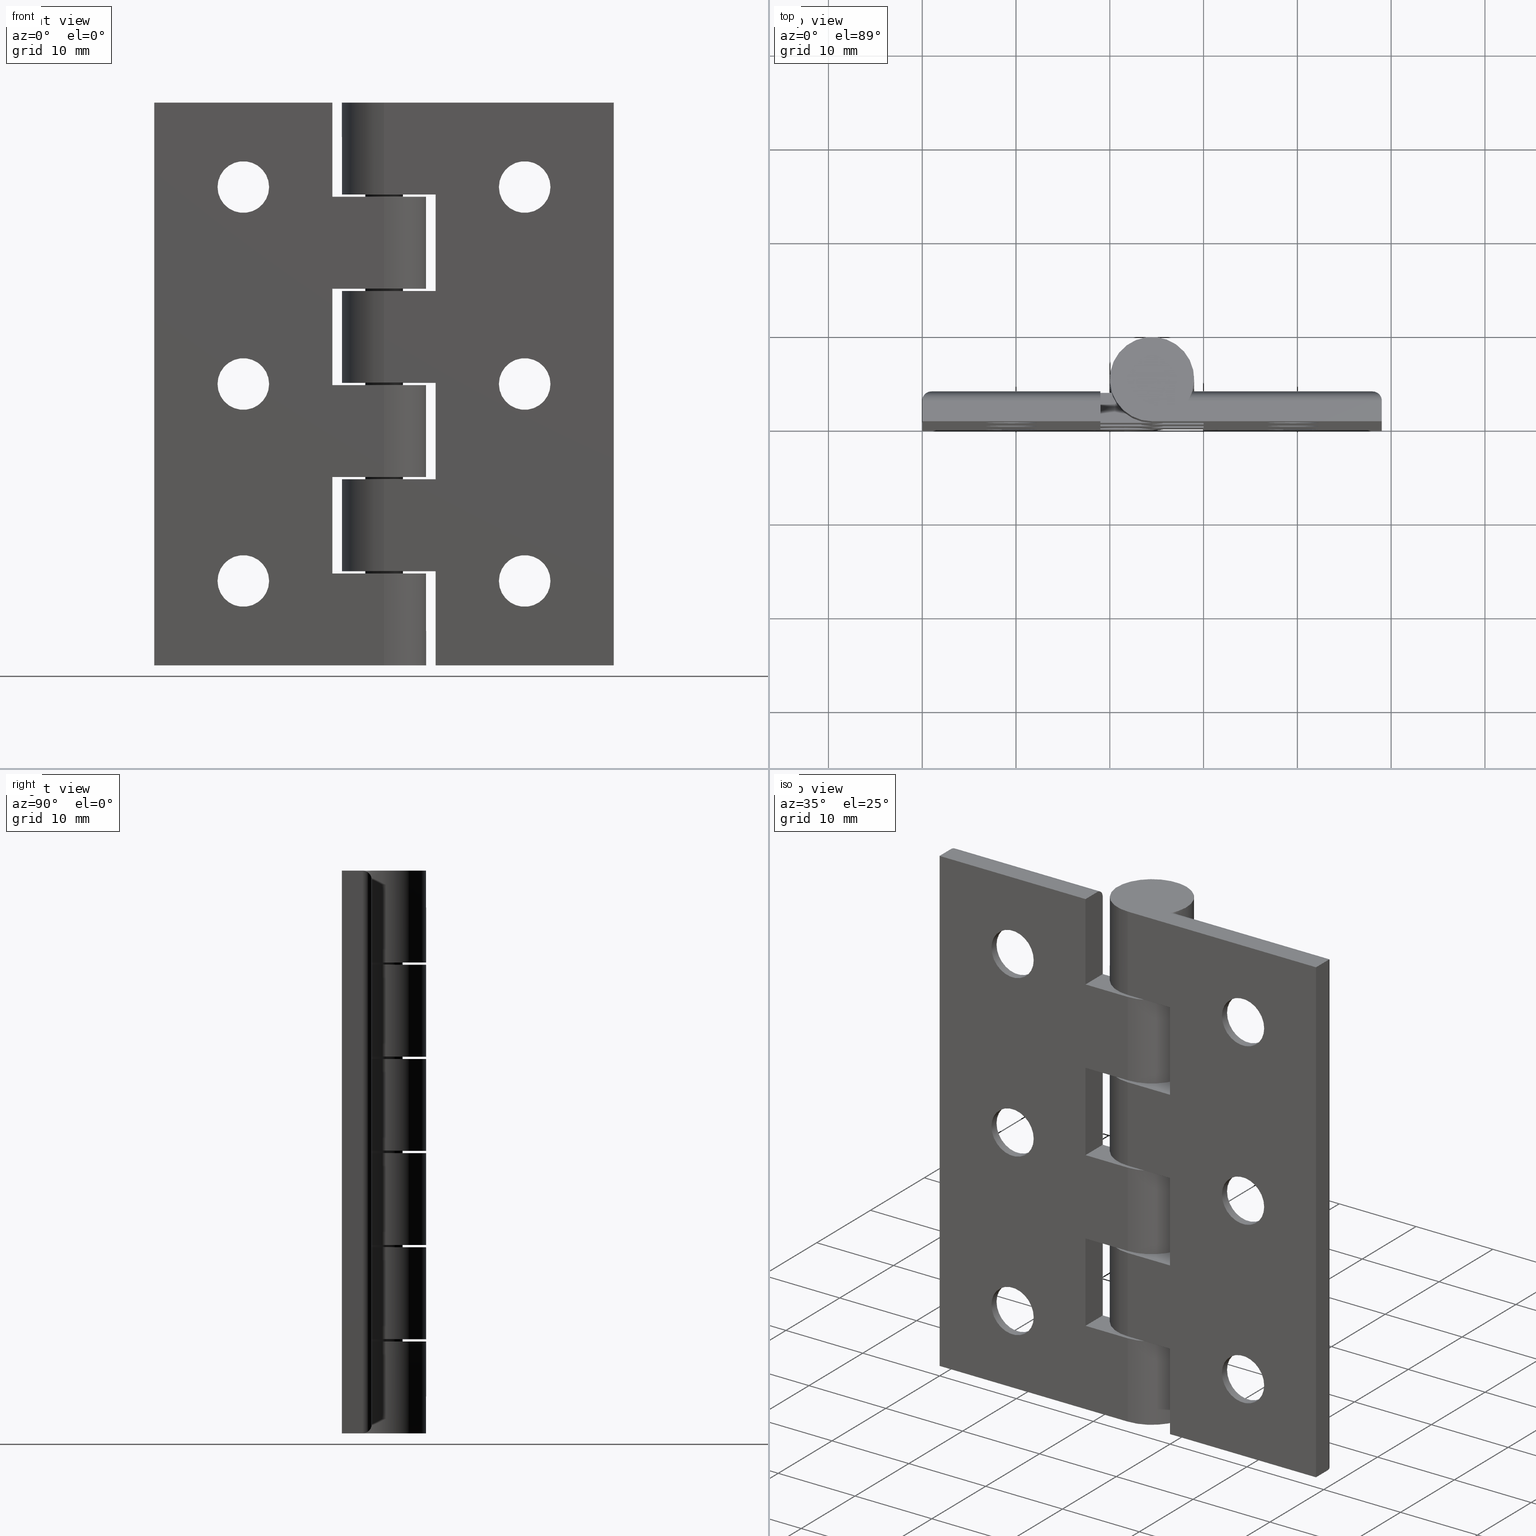
[diagram: canonical four-view strip — front | top / right | iso, engineering-drawing reading convention]
A machine part, canonical four-view strip (front | top / right | iso — engineering-drawing reading convention). The complete STEP part file that produces these views, byte-faithful:
ISO-10303-21;
HEADER;
/* Generated by software containing ST-Developer
 * from STEP Tools, Inc. (www.steptools.com) 
 */

FILE_DESCRIPTION(
/* description */ (''),
/* implementation_level */ '2;1');

FILE_NAME(
/* name */ '\\\\SYNOLOGYNAS\\web\\db2\\HC6050\\\X2\B3C4BA74\X0\\\HC605
0.stp',
/* time_stamp */ '2022-07-21T15:53:26+09:00',
/* author */ ('user'),
/* organization */ (''),
/* preprocessor_version */ 'ST-DEVELOPER v15.6',
/* originating_system */ 'Autodesk Inventor 2015',
/* authorisation */ '');

FILE_SCHEMA (('AUTOMOTIVE_DESIGN { 1 0 10303 214 3 1 1 }'));
ENDSEC;

DATA;
#10=MECHANICAL_DESIGN_GEOMETRIC_PRESENTATION_REPRESENTATION('',(#31,#30,
#29),#1799);
#11=ITEM_DEFINED_TRANSFORMATION($,$,#1054,#1167);
#12=ITEM_DEFINED_TRANSFORMATION($,$,#1107,#1168);
#13=ITEM_DEFINED_TRANSFORMATION($,$,#1160,#1169);
#14=(
REPRESENTATION_RELATIONSHIP($,$,#1817,#1820)
REPRESENTATION_RELATIONSHIP_WITH_TRANSFORMATION(#11)
SHAPE_REPRESENTATION_RELATIONSHIP()
);
#15=(
REPRESENTATION_RELATIONSHIP($,$,#1818,#1820)
REPRESENTATION_RELATIONSHIP_WITH_TRANSFORMATION(#12)
SHAPE_REPRESENTATION_RELATIONSHIP()
);
#16=(
REPRESENTATION_RELATIONSHIP($,$,#1819,#1820)
REPRESENTATION_RELATIONSHIP_WITH_TRANSFORMATION(#13)
SHAPE_REPRESENTATION_RELATIONSHIP()
);
#17=CONTEXT_DEPENDENT_SHAPE_REPRESENTATION(#14,#1814);
#18=CONTEXT_DEPENDENT_SHAPE_REPRESENTATION(#15,#1815);
#19=CONTEXT_DEPENDENT_SHAPE_REPRESENTATION(#16,#1816);
#20=NEXT_ASSEMBLY_USAGE_OCCURRENCE('HC6050L:1',$,$,#1825,#1822,$);
#21=NEXT_ASSEMBLY_USAGE_OCCURRENCE('HC6450R:1',$,$,#1825,#1823,$);
#22=NEXT_ASSEMBLY_USAGE_OCCURRENCE('HC6050RING:1',$,$,#1825,#1824,$);
#23=SHAPE_REPRESENTATION_RELATIONSHIP('SRR','None',#1817,#26);
#24=SHAPE_REPRESENTATION_RELATIONSHIP('SRR','None',#1818,#27);
#25=SHAPE_REPRESENTATION_RELATIONSHIP('SRR','None',#1819,#28);
#26=ADVANCED_BREP_SHAPE_REPRESENTATION($,(#32),#1795);
#27=ADVANCED_BREP_SHAPE_REPRESENTATION($,(#33),#1796);
#28=ADVANCED_BREP_SHAPE_REPRESENTATION($,(#34),#1797);
#29=STYLED_ITEM('',(#1842),#32);
#30=STYLED_ITEM('',(#1842),#33);
#31=STYLED_ITEM('',(#1842),#34);
#32=MANIFOLD_SOLID_BREP('\X2\C194B9ACB4DC\X0\1',#1051);
#33=MANIFOLD_SOLID_BREP('\X2\C194B9ACB4DC\X0\1',#1052);
#34=MANIFOLD_SOLID_BREP('\X2\C194B9ACB4DC\X0\1',#1053);
#35=CONICAL_SURFACE('',#1094,3.875,45.);
#36=CONICAL_SURFACE('',#1097,3.875,45.);
#37=CONICAL_SURFACE('',#1100,3.875,45.);
#38=CONICAL_SURFACE('',#1146,3.875,45.);
#39=CONICAL_SURFACE('',#1150,3.875,45.);
#40=CONICAL_SURFACE('',#1154,3.875,45.);
#41=FACE_BOUND('',#221,.T.);
#42=FACE_BOUND('',#222,.T.);
#43=FACE_BOUND('',#223,.T.);
#44=FACE_BOUND('',#226,.T.);
#45=FACE_BOUND('',#229,.T.);
#46=FACE_BOUND('',#231,.T.);
#47=FACE_BOUND('',#233,.T.);
#48=FACE_BOUND('',#236,.T.);
#49=FACE_BOUND('',#238,.T.);
#50=FACE_BOUND('',#239,.T.);
#51=FACE_BOUND('',#240,.T.);
#52=FACE_BOUND('',#245,.T.);
#53=FACE_BOUND('',#247,.T.);
#54=FACE_BOUND('',#249,.T.);
#55=FACE_BOUND('',#251,.T.);
#56=FACE_BOUND('',#253,.T.);
#57=FACE_BOUND('',#255,.T.);
#58=FACE_BOUND('',#257,.T.);
#59=FACE_BOUND('',#259,.T.);
#60=FACE_BOUND('',#261,.T.);
#61=FACE_BOUND('',#265,.T.);
#62=FACE_BOUND('',#272,.T.);
#63=FACE_BOUND('',#274,.T.);
#64=FACE_BOUND('',#277,.T.);
#65=FACE_BOUND('',#279,.T.);
#66=FACE_BOUND('',#282,.T.);
#67=FACE_BOUND('',#285,.T.);
#68=FACE_BOUND('',#287,.T.);
#69=FACE_BOUND('',#288,.T.);
#70=FACE_BOUND('',#289,.T.);
#71=FACE_BOUND('',#294,.T.);
#72=FACE_BOUND('',#296,.T.);
#73=FACE_BOUND('',#298,.T.);
#74=FACE_BOUND('',#300,.T.);
#75=FACE_BOUND('',#302,.T.);
#76=FACE_BOUND('',#304,.T.);
#77=FACE_BOUND('',#306,.T.);
#78=FACE_BOUND('',#308,.T.);
#79=FACE_BOUND('',#310,.T.);
#80=FACE_BOUND('',#312,.T.);
#81=FACE_BOUND('',#313,.T.);
#82=FACE_BOUND('',#314,.T.);
#83=FACE_BOUND('',#316,.T.);
#84=PLANE('',#1061);
#85=PLANE('',#1065);
#86=PLANE('',#1066);
#87=PLANE('',#1069);
#88=PLANE('',#1070);
#89=PLANE('',#1073);
#90=PLANE('',#1076);
#91=PLANE('',#1079);
#92=PLANE('',#1080);
#93=PLANE('',#1083);
#94=PLANE('',#1104);
#95=PLANE('',#1105);
#96=PLANE('',#1106);
#97=PLANE('',#1114);
#98=PLANE('',#1115);
#99=PLANE('',#1116);
#100=PLANE('',#1119);
#101=PLANE('',#1122);
#102=PLANE('',#1123);
#103=PLANE('',#1126);
#104=PLANE('',#1129);
#105=PLANE('',#1130);
#106=PLANE('',#1133);
#107=PLANE('',#1134);
#108=PLANE('',#1137);
#109=PLANE('',#1159);
#110=PLANE('',#1164);
#111=PLANE('',#1165);
#112=CIRCLE('',#1060,1.);
#113=CIRCLE('',#1062,5.);
#114=CIRCLE('',#1063,5.);
#115=CIRCLE('',#1064,5.);
#116=CIRCLE('',#1067,4.5);
#117=CIRCLE('',#1068,2.);
#118=CIRCLE('',#1071,4.5);
#119=CIRCLE('',#1072,2.);
#120=CIRCLE('',#1074,4.5);
#121=CIRCLE('',#1075,2.);
#122=CIRCLE('',#1077,4.5);
#123=CIRCLE('',#1078,2.);
#124=CIRCLE('',#1081,4.5);
#125=CIRCLE('',#1082,2.);
#126=CIRCLE('',#1084,2.75);
#127=CIRCLE('',#1085,2.75);
#128=CIRCLE('',#1086,2.75);
#129=CIRCLE('',#1090,4.5);
#130=CIRCLE('',#1093,2.);
#131=CIRCLE('',#1095,2.75);
#132=CIRCLE('',#1098,2.75);
#133=CIRCLE('',#1101,2.75);
#134=CIRCLE('',#1109,1.);
#135=CIRCLE('',#1117,4.5);
#136=CIRCLE('',#1118,2.);
#137=CIRCLE('',#1120,4.5);
#138=CIRCLE('',#1121,2.);
#139=CIRCLE('',#1124,4.5);
#140=CIRCLE('',#1125,2.);
#141=CIRCLE('',#1127,4.5);
#142=CIRCLE('',#1128,2.);
#143=CIRCLE('',#1131,4.5);
#144=CIRCLE('',#1132,2.);
#145=CIRCLE('',#1135,4.5);
#146=CIRCLE('',#1136,2.);
#147=CIRCLE('',#1138,2.75);
#148=CIRCLE('',#1139,2.75);
#149=CIRCLE('',#1140,2.75);
#150=CIRCLE('',#1147,5.);
#151=CIRCLE('',#1148,2.75);
#152=CIRCLE('',#1151,5.);
#153=CIRCLE('',#1152,2.75);
#154=CIRCLE('',#1155,5.);
#155=CIRCLE('',#1156,2.75);
#156=CIRCLE('',#1162,2.);
#157=CIRCLE('',#1163,2.);
#158=FACE_OUTER_BOUND('',#217,.T.);
#159=FACE_OUTER_BOUND('',#218,.T.);
#160=FACE_OUTER_BOUND('',#219,.T.);
#161=FACE_OUTER_BOUND('',#220,.T.);
#162=FACE_OUTER_BOUND('',#224,.T.);
#163=FACE_OUTER_BOUND('',#225,.T.);
#164=FACE_OUTER_BOUND('',#227,.T.);
#165=FACE_OUTER_BOUND('',#228,.T.);
#166=FACE_OUTER_BOUND('',#230,.T.);
#167=FACE_OUTER_BOUND('',#232,.T.);
#168=FACE_OUTER_BOUND('',#234,.T.);
#169=FACE_OUTER_BOUND('',#235,.T.);
#170=FACE_OUTER_BOUND('',#237,.T.);
#171=FACE_OUTER_BOUND('',#241,.T.);
#172=FACE_OUTER_BOUND('',#242,.T.);
#173=FACE_OUTER_BOUND('',#243,.T.);
#174=FACE_OUTER_BOUND('',#244,.T.);
#175=FACE_OUTER_BOUND('',#246,.T.);
#176=FACE_OUTER_BOUND('',#248,.T.);
#177=FACE_OUTER_BOUND('',#250,.T.);
#178=FACE_OUTER_BOUND('',#252,.T.);
#179=FACE_OUTER_BOUND('',#254,.T.);
#180=FACE_OUTER_BOUND('',#256,.T.);
#181=FACE_OUTER_BOUND('',#258,.T.);
#182=FACE_OUTER_BOUND('',#260,.T.);
#183=FACE_OUTER_BOUND('',#262,.T.);
#184=FACE_OUTER_BOUND('',#263,.T.);
#185=FACE_OUTER_BOUND('',#264,.T.);
#186=FACE_OUTER_BOUND('',#266,.T.);
#187=FACE_OUTER_BOUND('',#267,.T.);
#188=FACE_OUTER_BOUND('',#268,.T.);
#189=FACE_OUTER_BOUND('',#269,.T.);
#190=FACE_OUTER_BOUND('',#270,.T.);
#191=FACE_OUTER_BOUND('',#271,.T.);
#192=FACE_OUTER_BOUND('',#273,.T.);
#193=FACE_OUTER_BOUND('',#275,.T.);
#194=FACE_OUTER_BOUND('',#276,.T.);
#195=FACE_OUTER_BOUND('',#278,.T.);
#196=FACE_OUTER_BOUND('',#280,.T.);
#197=FACE_OUTER_BOUND('',#281,.T.);
#198=FACE_OUTER_BOUND('',#283,.T.);
#199=FACE_OUTER_BOUND('',#284,.T.);
#200=FACE_OUTER_BOUND('',#286,.T.);
#201=FACE_OUTER_BOUND('',#290,.T.);
#202=FACE_OUTER_BOUND('',#291,.T.);
#203=FACE_OUTER_BOUND('',#292,.T.);
#204=FACE_OUTER_BOUND('',#293,.T.);
#205=FACE_OUTER_BOUND('',#295,.T.);
#206=FACE_OUTER_BOUND('',#297,.T.);
#207=FACE_OUTER_BOUND('',#299,.T.);
#208=FACE_OUTER_BOUND('',#301,.T.);
#209=FACE_OUTER_BOUND('',#303,.T.);
#210=FACE_OUTER_BOUND('',#305,.T.);
#211=FACE_OUTER_BOUND('',#307,.T.);
#212=FACE_OUTER_BOUND('',#309,.T.);
#213=FACE_OUTER_BOUND('',#311,.T.);
#214=FACE_OUTER_BOUND('',#315,.T.);
#215=FACE_OUTER_BOUND('',#317,.T.);
#216=FACE_OUTER_BOUND('',#318,.T.);
#217=EDGE_LOOP('',(#707,#708,#709,#710));
#218=EDGE_LOOP('',(#711,#712,#713,#714));
#219=EDGE_LOOP('',(#715,#716,#717,#718));
#220=EDGE_LOOP('',(#719,#720,#721,#722,#723,#724,#725,#726,#727,#728,#729,
#730,#731,#732));
#221=EDGE_LOOP('',(#733));
#222=EDGE_LOOP('',(#734));
#223=EDGE_LOOP('',(#735));
#224=EDGE_LOOP('',(#736,#737,#738,#739,#740));
#225=EDGE_LOOP('',(#741,#742,#743,#744));
#226=EDGE_LOOP('',(#745));
#227=EDGE_LOOP('',(#746,#747,#748,#749));
#228=EDGE_LOOP('',(#750,#751,#752,#753));
#229=EDGE_LOOP('',(#754));
#230=EDGE_LOOP('',(#755,#756,#757,#758));
#231=EDGE_LOOP('',(#759));
#232=EDGE_LOOP('',(#760,#761,#762,#763));
#233=EDGE_LOOP('',(#764));
#234=EDGE_LOOP('',(#765,#766,#767,#768));
#235=EDGE_LOOP('',(#769,#770,#771,#772));
#236=EDGE_LOOP('',(#773));
#237=EDGE_LOOP('',(#774,#775,#776,#777,#778,#779,#780,#781,#782,#783,#784,
#785,#786,#787));
#238=EDGE_LOOP('',(#788));
#239=EDGE_LOOP('',(#789));
#240=EDGE_LOOP('',(#790));
#241=EDGE_LOOP('',(#791,#792,#793,#794));
#242=EDGE_LOOP('',(#795,#796,#797,#798));
#243=EDGE_LOOP('',(#799,#800,#801,#802,#803));
#244=EDGE_LOOP('',(#804));
#245=EDGE_LOOP('',(#805));
#246=EDGE_LOOP('',(#806));
#247=EDGE_LOOP('',(#807));
#248=EDGE_LOOP('',(#808));
#249=EDGE_LOOP('',(#809));
#250=EDGE_LOOP('',(#810));
#251=EDGE_LOOP('',(#811));
#252=EDGE_LOOP('',(#812));
#253=EDGE_LOOP('',(#813));
#254=EDGE_LOOP('',(#814));
#255=EDGE_LOOP('',(#815));
#256=EDGE_LOOP('',(#816));
#257=EDGE_LOOP('',(#817));
#258=EDGE_LOOP('',(#818));
#259=EDGE_LOOP('',(#819));
#260=EDGE_LOOP('',(#820));
#261=EDGE_LOOP('',(#821));
#262=EDGE_LOOP('',(#822,#823,#824,#825));
#263=EDGE_LOOP('',(#826,#827,#828,#829));
#264=EDGE_LOOP('',(#830,#831,#832,#833));
#265=EDGE_LOOP('',(#834));
#266=EDGE_LOOP('',(#835,#836,#837,#838));
#267=EDGE_LOOP('',(#839,#840,#841,#842));
#268=EDGE_LOOP('',(#843,#844,#845,#846));
#269=EDGE_LOOP('',(#847,#848,#849,#850));
#270=EDGE_LOOP('',(#851,#852,#853,#854));
#271=EDGE_LOOP('',(#855,#856,#857,#858));
#272=EDGE_LOOP('',(#859));
#273=EDGE_LOOP('',(#860,#861,#862,#863));
#274=EDGE_LOOP('',(#864));
#275=EDGE_LOOP('',(#865,#866,#867,#868));
#276=EDGE_LOOP('',(#869,#870,#871,#872));
#277=EDGE_LOOP('',(#873));
#278=EDGE_LOOP('',(#874,#875,#876,#877));
#279=EDGE_LOOP('',(#878));
#280=EDGE_LOOP('',(#879,#880,#881,#882,#883));
#281=EDGE_LOOP('',(#884,#885,#886,#887));
#282=EDGE_LOOP('',(#888));
#283=EDGE_LOOP('',(#889,#890,#891,#892));
#284=EDGE_LOOP('',(#893,#894,#895,#896));
#285=EDGE_LOOP('',(#897));
#286=EDGE_LOOP('',(#898,#899,#900,#901,#902,#903,#904,#905,#906,#907,#908,
#909,#910,#911));
#287=EDGE_LOOP('',(#912));
#288=EDGE_LOOP('',(#913));
#289=EDGE_LOOP('',(#914));
#290=EDGE_LOOP('',(#915,#916,#917,#918,#919));
#291=EDGE_LOOP('',(#920,#921,#922,#923));
#292=EDGE_LOOP('',(#924,#925,#926,#927));
#293=EDGE_LOOP('',(#928));
#294=EDGE_LOOP('',(#929));
#295=EDGE_LOOP('',(#930));
#296=EDGE_LOOP('',(#931));
#297=EDGE_LOOP('',(#932));
#298=EDGE_LOOP('',(#933));
#299=EDGE_LOOP('',(#934));
#300=EDGE_LOOP('',(#935));
#301=EDGE_LOOP('',(#936));
#302=EDGE_LOOP('',(#937));
#303=EDGE_LOOP('',(#938));
#304=EDGE_LOOP('',(#939));
#305=EDGE_LOOP('',(#940));
#306=EDGE_LOOP('',(#941));
#307=EDGE_LOOP('',(#942));
#308=EDGE_LOOP('',(#943));
#309=EDGE_LOOP('',(#944));
#310=EDGE_LOOP('',(#945));
#311=EDGE_LOOP('',(#946,#947,#948,#949,#950,#951,#952,#953,#954,#955,#956,
#957,#958,#959));
#312=EDGE_LOOP('',(#960));
#313=EDGE_LOOP('',(#961));
#314=EDGE_LOOP('',(#962));
#315=EDGE_LOOP('',(#963));
#316=EDGE_LOOP('',(#964));
#317=EDGE_LOOP('',(#965));
#318=EDGE_LOOP('',(#966));
#319=ELLIPSE('',#1056,1.41421356237309,1.);
#320=ELLIPSE('',#1058,1.41421356237309,1.);
#321=ELLIPSE('',#1110,1.41421356237309,1.);
#322=ELLIPSE('',#1112,1.4142135623731,1.);
#323=B_SPLINE_CURVE_WITH_KNOTS('',3,(#1486,#1487,#1488,#1489,#1490,#1491,
#1492,#1493,#1494,#1495),.UNSPECIFIED.,.F.,.F.,(4,2,2,2,4),(0.172075346206396,
0.214066809212429,0.256058272218462,0.293386765931598,0.330715259644735),
 .UNSPECIFIED.);
#324=B_SPLINE_CURVE_WITH_KNOTS('',3,(#1649,#1650,#1651,#1652,#1653,#1654,
#1655,#1656,#1657,#1658),.UNSPECIFIED.,.F.,.F.,(4,2,2,2,4),(0.172075346206396,
0.214066809212429,0.256058272218462,0.293386765931598,0.330715259644734),
 .UNSPECIFIED.);
#325=LINE('',#1484,#403);
#326=LINE('',#1497,#404);
#327=LINE('',#1501,#405);
#328=LINE('',#1504,#406);
#329=LINE('',#1507,#407);
#330=LINE('',#1510,#408);
#331=LINE('',#1513,#409);
#332=LINE('',#1515,#410);
#333=LINE('',#1517,#411);
#334=LINE('',#1519,#412);
#335=LINE('',#1521,#413);
#336=LINE('',#1523,#414);
#337=LINE('',#1525,#415);
#338=LINE('',#1527,#416);
#339=LINE('',#1529,#417);
#340=LINE('',#1531,#418);
#341=LINE('',#1532,#419);
#342=LINE('',#1541,#420);
#343=LINE('',#1543,#421);
#344=LINE('',#1544,#422);
#345=LINE('',#1547,#423);
#346=LINE('',#1549,#424);
#347=LINE('',#1555,#425);
#348=LINE('',#1556,#426);
#349=LINE('',#1560,#427);
#350=LINE('',#1565,#428);
#351=LINE('',#1571,#429);
#352=LINE('',#1573,#430);
#353=LINE('',#1579,#431);
#354=LINE('',#1580,#432);
#355=LINE('',#1584,#433);
#356=LINE('',#1588,#434);
#357=LINE('',#1589,#435);
#358=LINE('',#1591,#436);
#359=LINE('',#1593,#437);
#360=LINE('',#1595,#438);
#361=LINE('',#1596,#439);
#362=LINE('',#1625,#440);
#363=LINE('',#1626,#441);
#364=LINE('',#1633,#442);
#365=LINE('',#1637,#443);
#366=LINE('',#1641,#444);
#367=LINE('',#1644,#445);
#368=LINE('',#1647,#446);
#369=LINE('',#1659,#447);
#370=LINE('',#1662,#448);
#371=LINE('',#1664,#449);
#372=LINE('',#1665,#450);
#373=LINE('',#1668,#451);
#374=LINE('',#1669,#452);
#375=LINE('',#1673,#453);
#376=LINE('',#1679,#454);
#377=LINE('',#1681,#455);
#378=LINE('',#1683,#456);
#379=LINE('',#1689,#457);
#380=LINE('',#1691,#458);
#381=LINE('',#1692,#459);
#382=LINE('',#1695,#460);
#383=LINE('',#1698,#461);
#384=LINE('',#1704,#462);
#385=LINE('',#1706,#463);
#386=LINE('',#1708,#464);
#387=LINE('',#1713,#465);
#388=LINE('',#1714,#466);
#389=LINE('',#1718,#467);
#390=LINE('',#1720,#468);
#391=LINE('',#1722,#469);
#392=LINE('',#1728,#470);
#393=LINE('',#1730,#471);
#394=LINE('',#1731,#472);
#395=LINE('',#1734,#473);
#396=LINE('',#1737,#474);
#397=LINE('',#1741,#475);
#398=LINE('',#1742,#476);
#399=LINE('',#1743,#477);
#400=LINE('',#1751,#478);
#401=LINE('',#1753,#479);
#402=LINE('',#1755,#480);
#403=VECTOR('',#1174,19.1918681542924);
#404=VECTOR('',#1175,20.6321840788373);
#405=VECTOR('',#1180,60.);
#406=VECTOR('',#1183,58.);
#407=VECTOR('',#1186,19.);
#408=VECTOR('',#1189,18.);
#409=VECTOR('',#1192,9.04);
#410=VECTOR('',#1193,1.19186815429239);
#411=VECTOR('',#1194,9.8);
#412=VECTOR('',#1195,1.19186815429239);
#413=VECTOR('',#1196,10.28);
#414=VECTOR('',#1197,1.1918681542924);
#415=VECTOR('',#1198,9.8);
#416=VECTOR('',#1199,1.1918681542924);
#417=VECTOR('',#1200,10.28);
#418=VECTOR('',#1201,1.19186815429241);
#419=VECTOR('',#1202,8.8);
#420=VECTOR('',#1211,2.2);
#421=VECTOR('',#1212,10.04);
#422=VECTOR('',#1213,3.2);
#423=VECTOR('',#1216,3.2);
#424=VECTOR('',#1217,5.50000000000001);
#425=VECTOR('',#1224,3.2);
#426=VECTOR('',#1225,10.28);
#427=VECTOR('',#1230,5.50000000000001);
#428=VECTOR('',#1235,5.5);
#429=VECTOR('',#1242,3.2);
#430=VECTOR('',#1243,5.5);
#431=VECTOR('',#1250,3.2);
#432=VECTOR('',#1251,10.28);
#433=VECTOR('',#1256,5.5);
#434=VECTOR('',#1261,9.8);
#435=VECTOR('',#1262,9.8);
#436=VECTOR('',#1263,19.);
#437=VECTOR('',#1264,60.);
#438=VECTOR('',#1265,24.5);
#439=VECTOR('',#1266,9.8);
#440=VECTOR('',#1309,2.2);
#441=VECTOR('',#1310,2.2);
#442=VECTOR('',#1319,19.);
#443=VECTOR('',#1322,18.);
#444=VECTOR('',#1327,58.);
#445=VECTOR('',#1330,60.);
#446=VECTOR('',#1333,19.1918681542924);
#447=VECTOR('',#1334,20.6321840788373);
#448=VECTOR('',#1337,2.2);
#449=VECTOR('',#1338,19.);
#450=VECTOR('',#1339,2.2);
#451=VECTOR('',#1342,2.2);
#452=VECTOR('',#1343,60.);
#453=VECTOR('',#1348,24.5);
#454=VECTOR('',#1353,1.1918681542924);
#455=VECTOR('',#1354,3.2);
#456=VECTOR('',#1355,5.5);
#457=VECTOR('',#1362,10.28);
#458=VECTOR('',#1363,3.2);
#459=VECTOR('',#1364,10.28);
#460=VECTOR('',#1367,1.1918681542924);
#461=VECTOR('',#1370,5.5);
#462=VECTOR('',#1375,1.1918681542924);
#463=VECTOR('',#1376,3.2);
#464=VECTOR('',#1377,5.5);
#465=VECTOR('',#1384,10.04);
#466=VECTOR('',#1385,9.04);
#467=VECTOR('',#1388,1.19186815429241);
#468=VECTOR('',#1389,3.2);
#469=VECTOR('',#1390,5.50000000000001);
#470=VECTOR('',#1397,10.28);
#471=VECTOR('',#1398,3.2);
#472=VECTOR('',#1399,10.28);
#473=VECTOR('',#1402,1.1918681542924);
#474=VECTOR('',#1405,5.5);
#475=VECTOR('',#1410,9.8);
#476=VECTOR('',#1411,9.8);
#477=VECTOR('',#1412,9.8);
#478=VECTOR('',#1421,8.80000000000001);
#479=VECTOR('',#1424,9.8);
#480=VECTOR('',#1427,9.8);
#481=VERTEX_POINT('',#1482);
#482=VERTEX_POINT('',#1483);
#483=VERTEX_POINT('',#1485);
#484=VERTEX_POINT('',#1496);
#485=VERTEX_POINT('',#1500);
#486=VERTEX_POINT('',#1502);
#487=VERTEX_POINT('',#1506);
#488=VERTEX_POINT('',#1508);
#489=VERTEX_POINT('',#1512);
#490=VERTEX_POINT('',#1514);
#491=VERTEX_POINT('',#1516);
#492=VERTEX_POINT('',#1518);
#493=VERTEX_POINT('',#1520);
#494=VERTEX_POINT('',#1522);
#495=VERTEX_POINT('',#1524);
#496=VERTEX_POINT('',#1526);
#497=VERTEX_POINT('',#1528);
#498=VERTEX_POINT('',#1530);
#499=VERTEX_POINT('',#1533);
#500=VERTEX_POINT('',#1535);
#501=VERTEX_POINT('',#1537);
#502=VERTEX_POINT('',#1540);
#503=VERTEX_POINT('',#1542);
#504=VERTEX_POINT('',#1546);
#505=VERTEX_POINT('',#1548);
#506=VERTEX_POINT('',#1551);
#507=VERTEX_POINT('',#1554);
#508=VERTEX_POINT('',#1558);
#509=VERTEX_POINT('',#1561);
#510=VERTEX_POINT('',#1564);
#511=VERTEX_POINT('',#1567);
#512=VERTEX_POINT('',#1570);
#513=VERTEX_POINT('',#1572);
#514=VERTEX_POINT('',#1575);
#515=VERTEX_POINT('',#1578);
#516=VERTEX_POINT('',#1582);
#517=VERTEX_POINT('',#1585);
#518=VERTEX_POINT('',#1590);
#519=VERTEX_POINT('',#1592);
#520=VERTEX_POINT('',#1594);
#521=VERTEX_POINT('',#1597);
#522=VERTEX_POINT('',#1599);
#523=VERTEX_POINT('',#1601);
#524=VERTEX_POINT('',#1609);
#525=VERTEX_POINT('',#1612);
#526=VERTEX_POINT('',#1616);
#527=VERTEX_POINT('',#1620);
#528=VERTEX_POINT('',#1631);
#529=VERTEX_POINT('',#1632);
#530=VERTEX_POINT('',#1634);
#531=VERTEX_POINT('',#1636);
#532=VERTEX_POINT('',#1640);
#533=VERTEX_POINT('',#1642);
#534=VERTEX_POINT('',#1646);
#535=VERTEX_POINT('',#1648);
#536=VERTEX_POINT('',#1661);
#537=VERTEX_POINT('',#1663);
#538=VERTEX_POINT('',#1667);
#539=VERTEX_POINT('',#1671);
#540=VERTEX_POINT('',#1674);
#541=VERTEX_POINT('',#1677);
#542=VERTEX_POINT('',#1678);
#543=VERTEX_POINT('',#1680);
#544=VERTEX_POINT('',#1682);
#545=VERTEX_POINT('',#1685);
#546=VERTEX_POINT('',#1688);
#547=VERTEX_POINT('',#1690);
#548=VERTEX_POINT('',#1694);
#549=VERTEX_POINT('',#1696);
#550=VERTEX_POINT('',#1699);
#551=VERTEX_POINT('',#1702);
#552=VERTEX_POINT('',#1703);
#553=VERTEX_POINT('',#1705);
#554=VERTEX_POINT('',#1707);
#555=VERTEX_POINT('',#1710);
#556=VERTEX_POINT('',#1716);
#557=VERTEX_POINT('',#1717);
#558=VERTEX_POINT('',#1719);
#559=VERTEX_POINT('',#1721);
#560=VERTEX_POINT('',#1724);
#561=VERTEX_POINT('',#1727);
#562=VERTEX_POINT('',#1729);
#563=VERTEX_POINT('',#1733);
#564=VERTEX_POINT('',#1735);
#565=VERTEX_POINT('',#1738);
#566=VERTEX_POINT('',#1744);
#567=VERTEX_POINT('',#1746);
#568=VERTEX_POINT('',#1748);
#569=VERTEX_POINT('',#1759);
#570=VERTEX_POINT('',#1761);
#571=VERTEX_POINT('',#1765);
#572=VERTEX_POINT('',#1767);
#573=VERTEX_POINT('',#1771);
#574=VERTEX_POINT('',#1773);
#575=VERTEX_POINT('',#1780);
#576=VERTEX_POINT('',#1782);
#577=EDGE_CURVE('',#481,#482,#325,.T.);
#578=EDGE_CURVE('',#482,#483,#323,.F.);
#579=EDGE_CURVE('',#483,#484,#326,.T.);
#580=EDGE_CURVE('',#484,#481,#319,.T.);
#581=EDGE_CURVE('',#484,#485,#327,.T.);
#582=EDGE_CURVE('',#485,#486,#320,.T.);
#583=EDGE_CURVE('',#486,#481,#328,.T.);
#584=EDGE_CURVE('',#485,#487,#329,.T.);
#585=EDGE_CURVE('',#487,#488,#112,.T.);
#586=EDGE_CURVE('',#488,#486,#330,.T.);
#587=EDGE_CURVE('',#488,#489,#331,.T.);
#588=EDGE_CURVE('',#489,#490,#332,.T.);
#589=EDGE_CURVE('',#491,#490,#333,.T.);
#590=EDGE_CURVE('',#491,#492,#334,.T.);
#591=EDGE_CURVE('',#492,#493,#335,.T.);
#592=EDGE_CURVE('',#493,#494,#336,.T.);
#593=EDGE_CURVE('',#495,#494,#337,.T.);
#594=EDGE_CURVE('',#495,#496,#338,.T.);
#595=EDGE_CURVE('',#496,#497,#339,.T.);
#596=EDGE_CURVE('',#497,#498,#340,.T.);
#597=EDGE_CURVE('',#482,#498,#341,.T.);
#598=EDGE_CURVE('',#499,#499,#113,.T.);
#599=EDGE_CURVE('',#500,#500,#114,.T.);
#600=EDGE_CURVE('',#501,#501,#115,.T.);
#601=EDGE_CURVE('',#502,#487,#342,.T.);
#602=EDGE_CURVE('',#503,#502,#343,.T.);
#603=EDGE_CURVE('',#489,#503,#344,.T.);
#604=EDGE_CURVE('',#497,#504,#345,.T.);
#605=EDGE_CURVE('',#505,#504,#346,.T.);
#606=EDGE_CURVE('',#498,#505,#116,.T.);
#607=EDGE_CURVE('',#506,#506,#117,.T.);
#608=EDGE_CURVE('',#496,#507,#347,.T.);
#609=EDGE_CURVE('',#504,#507,#348,.T.);
#610=EDGE_CURVE('',#508,#495,#118,.T.);
#611=EDGE_CURVE('',#507,#508,#349,.T.);
#612=EDGE_CURVE('',#509,#509,#119,.T.);
#613=EDGE_CURVE('',#510,#503,#350,.T.);
#614=EDGE_CURVE('',#490,#510,#120,.T.);
#615=EDGE_CURVE('',#511,#511,#121,.T.);
#616=EDGE_CURVE('',#493,#512,#351,.T.);
#617=EDGE_CURVE('',#513,#512,#352,.T.);
#618=EDGE_CURVE('',#494,#513,#122,.T.);
#619=EDGE_CURVE('',#514,#514,#123,.T.);
#620=EDGE_CURVE('',#492,#515,#353,.T.);
#621=EDGE_CURVE('',#512,#515,#354,.T.);
#622=EDGE_CURVE('',#516,#491,#124,.T.);
#623=EDGE_CURVE('',#515,#516,#355,.T.);
#624=EDGE_CURVE('',#517,#517,#125,.T.);
#625=EDGE_CURVE('',#508,#513,#356,.T.);
#626=EDGE_CURVE('',#516,#510,#357,.T.);
#627=EDGE_CURVE('',#518,#502,#358,.T.);
#628=EDGE_CURVE('',#519,#518,#359,.T.);
#629=EDGE_CURVE('',#519,#520,#360,.T.);
#630=EDGE_CURVE('',#520,#505,#361,.T.);
#631=EDGE_CURVE('',#521,#521,#126,.T.);
#632=EDGE_CURVE('',#522,#522,#127,.T.);
#633=EDGE_CURVE('',#523,#523,#128,.T.);
#634=EDGE_CURVE('',#520,#483,#129,.T.);
#635=EDGE_CURVE('',#524,#524,#130,.T.);
#636=EDGE_CURVE('',#525,#525,#131,.T.);
#637=EDGE_CURVE('',#526,#526,#132,.T.);
#638=EDGE_CURVE('',#527,#527,#133,.T.);
#639=EDGE_CURVE('',#484,#519,#362,.T.);
#640=EDGE_CURVE('',#485,#518,#363,.T.);
#641=EDGE_CURVE('',#528,#529,#364,.T.);
#642=EDGE_CURVE('',#529,#530,#134,.T.);
#643=EDGE_CURVE('',#530,#531,#365,.T.);
#644=EDGE_CURVE('',#531,#528,#321,.T.);
#645=EDGE_CURVE('',#531,#532,#366,.T.);
#646=EDGE_CURVE('',#532,#533,#322,.T.);
#647=EDGE_CURVE('',#533,#528,#367,.T.);
#648=EDGE_CURVE('',#532,#534,#368,.T.);
#649=EDGE_CURVE('',#534,#535,#324,.F.);
#650=EDGE_CURVE('',#535,#533,#369,.T.);
#651=EDGE_CURVE('',#536,#528,#370,.T.);
#652=EDGE_CURVE('',#537,#536,#371,.T.);
#653=EDGE_CURVE('',#537,#529,#372,.T.);
#654=EDGE_CURVE('',#538,#533,#373,.T.);
#655=EDGE_CURVE('',#536,#538,#374,.T.);
#656=EDGE_CURVE('',#539,#535,#135,.T.);
#657=EDGE_CURVE('',#539,#538,#375,.T.);
#658=EDGE_CURVE('',#540,#540,#136,.T.);
#659=EDGE_CURVE('',#541,#542,#376,.T.);
#660=EDGE_CURVE('',#541,#543,#377,.T.);
#661=EDGE_CURVE('',#544,#543,#378,.T.);
#662=EDGE_CURVE('',#542,#544,#137,.T.);
#663=EDGE_CURVE('',#545,#545,#138,.T.);
#664=EDGE_CURVE('',#546,#541,#379,.T.);
#665=EDGE_CURVE('',#546,#547,#380,.T.);
#666=EDGE_CURVE('',#543,#547,#381,.T.);
#667=EDGE_CURVE('',#548,#546,#382,.T.);
#668=EDGE_CURVE('',#549,#548,#139,.T.);
#669=EDGE_CURVE('',#547,#549,#383,.T.);
#670=EDGE_CURVE('',#550,#550,#140,.T.);
#671=EDGE_CURVE('',#551,#552,#384,.T.);
#672=EDGE_CURVE('',#551,#553,#385,.T.);
#673=EDGE_CURVE('',#554,#553,#386,.T.);
#674=EDGE_CURVE('',#552,#554,#141,.T.);
#675=EDGE_CURVE('',#555,#555,#142,.T.);
#676=EDGE_CURVE('',#553,#537,#387,.T.);
#677=EDGE_CURVE('',#530,#551,#388,.T.);
#678=EDGE_CURVE('',#556,#557,#389,.T.);
#679=EDGE_CURVE('',#556,#558,#390,.T.);
#680=EDGE_CURVE('',#559,#558,#391,.T.);
#681=EDGE_CURVE('',#557,#559,#143,.T.);
#682=EDGE_CURVE('',#560,#560,#144,.T.);
#683=EDGE_CURVE('',#561,#556,#392,.T.);
#684=EDGE_CURVE('',#561,#562,#393,.T.);
#685=EDGE_CURVE('',#558,#562,#394,.T.);
#686=EDGE_CURVE('',#563,#561,#395,.T.);
#687=EDGE_CURVE('',#564,#563,#145,.T.);
#688=EDGE_CURVE('',#562,#564,#396,.T.);
#689=EDGE_CURVE('',#565,#565,#146,.T.);
#690=EDGE_CURVE('',#554,#549,#397,.T.);
#691=EDGE_CURVE('',#559,#539,#398,.T.);
#692=EDGE_CURVE('',#544,#564,#399,.T.);
#693=EDGE_CURVE('',#566,#566,#147,.T.);
#694=EDGE_CURVE('',#567,#567,#148,.T.);
#695=EDGE_CURVE('',#568,#568,#149,.T.);
#696=EDGE_CURVE('',#557,#534,#400,.T.);
#697=EDGE_CURVE('',#552,#548,#401,.T.);
#698=EDGE_CURVE('',#542,#563,#402,.T.);
#699=EDGE_CURVE('',#569,#569,#150,.T.);
#700=EDGE_CURVE('',#570,#570,#151,.T.);
#701=EDGE_CURVE('',#571,#571,#152,.T.);
#702=EDGE_CURVE('',#572,#572,#153,.T.);
#703=EDGE_CURVE('',#573,#573,#154,.T.);
#704=EDGE_CURVE('',#574,#574,#155,.T.);
#705=EDGE_CURVE('',#575,#575,#156,.T.);
#706=EDGE_CURVE('',#576,#576,#157,.T.);
#707=ORIENTED_EDGE('',*,*,#577,.T.);
#708=ORIENTED_EDGE('',*,*,#578,.T.);
#709=ORIENTED_EDGE('',*,*,#579,.T.);
#710=ORIENTED_EDGE('',*,*,#580,.T.);
#711=ORIENTED_EDGE('',*,*,#581,.T.);
#712=ORIENTED_EDGE('',*,*,#582,.T.);
#713=ORIENTED_EDGE('',*,*,#583,.T.);
#714=ORIENTED_EDGE('',*,*,#580,.F.);
#715=ORIENTED_EDGE('',*,*,#584,.T.);
#716=ORIENTED_EDGE('',*,*,#585,.T.);
#717=ORIENTED_EDGE('',*,*,#586,.T.);
#718=ORIENTED_EDGE('',*,*,#582,.F.);
#719=ORIENTED_EDGE('',*,*,#577,.F.);
#720=ORIENTED_EDGE('',*,*,#583,.F.);
#721=ORIENTED_EDGE('',*,*,#586,.F.);
#722=ORIENTED_EDGE('',*,*,#587,.T.);
#723=ORIENTED_EDGE('',*,*,#588,.T.);
#724=ORIENTED_EDGE('',*,*,#589,.F.);
#725=ORIENTED_EDGE('',*,*,#590,.T.);
#726=ORIENTED_EDGE('',*,*,#591,.T.);
#727=ORIENTED_EDGE('',*,*,#592,.T.);
#728=ORIENTED_EDGE('',*,*,#593,.F.);
#729=ORIENTED_EDGE('',*,*,#594,.T.);
#730=ORIENTED_EDGE('',*,*,#595,.T.);
#731=ORIENTED_EDGE('',*,*,#596,.T.);
#732=ORIENTED_EDGE('',*,*,#597,.F.);
#733=ORIENTED_EDGE('',*,*,#598,.T.);
#734=ORIENTED_EDGE('',*,*,#599,.T.);
#735=ORIENTED_EDGE('',*,*,#600,.T.);
#736=ORIENTED_EDGE('',*,*,#585,.F.);
#737=ORIENTED_EDGE('',*,*,#601,.F.);
#738=ORIENTED_EDGE('',*,*,#602,.F.);
#739=ORIENTED_EDGE('',*,*,#603,.F.);
#740=ORIENTED_EDGE('',*,*,#587,.F.);
#741=ORIENTED_EDGE('',*,*,#596,.F.);
#742=ORIENTED_EDGE('',*,*,#604,.T.);
#743=ORIENTED_EDGE('',*,*,#605,.F.);
#744=ORIENTED_EDGE('',*,*,#606,.F.);
#745=ORIENTED_EDGE('',*,*,#607,.F.);
#746=ORIENTED_EDGE('',*,*,#595,.F.);
#747=ORIENTED_EDGE('',*,*,#608,.T.);
#748=ORIENTED_EDGE('',*,*,#609,.F.);
#749=ORIENTED_EDGE('',*,*,#604,.F.);
#750=ORIENTED_EDGE('',*,*,#594,.F.);
#751=ORIENTED_EDGE('',*,*,#610,.F.);
#752=ORIENTED_EDGE('',*,*,#611,.F.);
#753=ORIENTED_EDGE('',*,*,#608,.F.);
#754=ORIENTED_EDGE('',*,*,#612,.F.);
#755=ORIENTED_EDGE('',*,*,#588,.F.);
#756=ORIENTED_EDGE('',*,*,#603,.T.);
#757=ORIENTED_EDGE('',*,*,#613,.F.);
#758=ORIENTED_EDGE('',*,*,#614,.F.);
#759=ORIENTED_EDGE('',*,*,#615,.F.);
#760=ORIENTED_EDGE('',*,*,#592,.F.);
#761=ORIENTED_EDGE('',*,*,#616,.T.);
#762=ORIENTED_EDGE('',*,*,#617,.F.);
#763=ORIENTED_EDGE('',*,*,#618,.F.);
#764=ORIENTED_EDGE('',*,*,#619,.F.);
#765=ORIENTED_EDGE('',*,*,#591,.F.);
#766=ORIENTED_EDGE('',*,*,#620,.T.);
#767=ORIENTED_EDGE('',*,*,#621,.F.);
#768=ORIENTED_EDGE('',*,*,#616,.F.);
#769=ORIENTED_EDGE('',*,*,#590,.F.);
#770=ORIENTED_EDGE('',*,*,#622,.F.);
#771=ORIENTED_EDGE('',*,*,#623,.F.);
#772=ORIENTED_EDGE('',*,*,#620,.F.);
#773=ORIENTED_EDGE('',*,*,#624,.F.);
#774=ORIENTED_EDGE('',*,*,#605,.T.);
#775=ORIENTED_EDGE('',*,*,#609,.T.);
#776=ORIENTED_EDGE('',*,*,#611,.T.);
#777=ORIENTED_EDGE('',*,*,#625,.T.);
#778=ORIENTED_EDGE('',*,*,#617,.T.);
#779=ORIENTED_EDGE('',*,*,#621,.T.);
#780=ORIENTED_EDGE('',*,*,#623,.T.);
#781=ORIENTED_EDGE('',*,*,#626,.T.);
#782=ORIENTED_EDGE('',*,*,#613,.T.);
#783=ORIENTED_EDGE('',*,*,#602,.T.);
#784=ORIENTED_EDGE('',*,*,#627,.F.);
#785=ORIENTED_EDGE('',*,*,#628,.F.);
#786=ORIENTED_EDGE('',*,*,#629,.T.);
#787=ORIENTED_EDGE('',*,*,#630,.T.);
#788=ORIENTED_EDGE('',*,*,#631,.T.);
#789=ORIENTED_EDGE('',*,*,#632,.T.);
#790=ORIENTED_EDGE('',*,*,#633,.T.);
#791=ORIENTED_EDGE('',*,*,#614,.T.);
#792=ORIENTED_EDGE('',*,*,#626,.F.);
#793=ORIENTED_EDGE('',*,*,#622,.T.);
#794=ORIENTED_EDGE('',*,*,#589,.T.);
#795=ORIENTED_EDGE('',*,*,#610,.T.);
#796=ORIENTED_EDGE('',*,*,#593,.T.);
#797=ORIENTED_EDGE('',*,*,#618,.T.);
#798=ORIENTED_EDGE('',*,*,#625,.F.);
#799=ORIENTED_EDGE('',*,*,#606,.T.);
#800=ORIENTED_EDGE('',*,*,#630,.F.);
#801=ORIENTED_EDGE('',*,*,#634,.T.);
#802=ORIENTED_EDGE('',*,*,#578,.F.);
#803=ORIENTED_EDGE('',*,*,#597,.T.);
#804=ORIENTED_EDGE('',*,*,#619,.T.);
#805=ORIENTED_EDGE('',*,*,#612,.T.);
#806=ORIENTED_EDGE('',*,*,#635,.F.);
#807=ORIENTED_EDGE('',*,*,#607,.T.);
#808=ORIENTED_EDGE('',*,*,#600,.F.);
#809=ORIENTED_EDGE('',*,*,#636,.F.);
#810=ORIENTED_EDGE('',*,*,#633,.F.);
#811=ORIENTED_EDGE('',*,*,#636,.T.);
#812=ORIENTED_EDGE('',*,*,#599,.F.);
#813=ORIENTED_EDGE('',*,*,#637,.F.);
#814=ORIENTED_EDGE('',*,*,#632,.F.);
#815=ORIENTED_EDGE('',*,*,#637,.T.);
#816=ORIENTED_EDGE('',*,*,#598,.F.);
#817=ORIENTED_EDGE('',*,*,#638,.F.);
#818=ORIENTED_EDGE('',*,*,#631,.F.);
#819=ORIENTED_EDGE('',*,*,#638,.T.);
#820=ORIENTED_EDGE('',*,*,#615,.T.);
#821=ORIENTED_EDGE('',*,*,#624,.T.);
#822=ORIENTED_EDGE('',*,*,#581,.F.);
#823=ORIENTED_EDGE('',*,*,#639,.T.);
#824=ORIENTED_EDGE('',*,*,#628,.T.);
#825=ORIENTED_EDGE('',*,*,#640,.F.);
#826=ORIENTED_EDGE('',*,*,#584,.F.);
#827=ORIENTED_EDGE('',*,*,#640,.T.);
#828=ORIENTED_EDGE('',*,*,#627,.T.);
#829=ORIENTED_EDGE('',*,*,#601,.T.);
#830=ORIENTED_EDGE('',*,*,#634,.F.);
#831=ORIENTED_EDGE('',*,*,#629,.F.);
#832=ORIENTED_EDGE('',*,*,#639,.F.);
#833=ORIENTED_EDGE('',*,*,#579,.F.);
#834=ORIENTED_EDGE('',*,*,#635,.T.);
#835=ORIENTED_EDGE('',*,*,#641,.T.);
#836=ORIENTED_EDGE('',*,*,#642,.T.);
#837=ORIENTED_EDGE('',*,*,#643,.T.);
#838=ORIENTED_EDGE('',*,*,#644,.T.);
#839=ORIENTED_EDGE('',*,*,#645,.T.);
#840=ORIENTED_EDGE('',*,*,#646,.T.);
#841=ORIENTED_EDGE('',*,*,#647,.T.);
#842=ORIENTED_EDGE('',*,*,#644,.F.);
#843=ORIENTED_EDGE('',*,*,#648,.T.);
#844=ORIENTED_EDGE('',*,*,#649,.T.);
#845=ORIENTED_EDGE('',*,*,#650,.T.);
#846=ORIENTED_EDGE('',*,*,#646,.F.);
#847=ORIENTED_EDGE('',*,*,#641,.F.);
#848=ORIENTED_EDGE('',*,*,#651,.F.);
#849=ORIENTED_EDGE('',*,*,#652,.F.);
#850=ORIENTED_EDGE('',*,*,#653,.T.);
#851=ORIENTED_EDGE('',*,*,#647,.F.);
#852=ORIENTED_EDGE('',*,*,#654,.F.);
#853=ORIENTED_EDGE('',*,*,#655,.F.);
#854=ORIENTED_EDGE('',*,*,#651,.T.);
#855=ORIENTED_EDGE('',*,*,#650,.F.);
#856=ORIENTED_EDGE('',*,*,#656,.F.);
#857=ORIENTED_EDGE('',*,*,#657,.T.);
#858=ORIENTED_EDGE('',*,*,#654,.T.);
#859=ORIENTED_EDGE('',*,*,#658,.T.);
#860=ORIENTED_EDGE('',*,*,#659,.F.);
#861=ORIENTED_EDGE('',*,*,#660,.T.);
#862=ORIENTED_EDGE('',*,*,#661,.F.);
#863=ORIENTED_EDGE('',*,*,#662,.F.);
#864=ORIENTED_EDGE('',*,*,#663,.F.);
#865=ORIENTED_EDGE('',*,*,#664,.F.);
#866=ORIENTED_EDGE('',*,*,#665,.T.);
#867=ORIENTED_EDGE('',*,*,#666,.F.);
#868=ORIENTED_EDGE('',*,*,#660,.F.);
#869=ORIENTED_EDGE('',*,*,#667,.F.);
#870=ORIENTED_EDGE('',*,*,#668,.F.);
#871=ORIENTED_EDGE('',*,*,#669,.F.);
#872=ORIENTED_EDGE('',*,*,#665,.F.);
#873=ORIENTED_EDGE('',*,*,#670,.F.);
#874=ORIENTED_EDGE('',*,*,#671,.F.);
#875=ORIENTED_EDGE('',*,*,#672,.T.);
#876=ORIENTED_EDGE('',*,*,#673,.F.);
#877=ORIENTED_EDGE('',*,*,#674,.F.);
#878=ORIENTED_EDGE('',*,*,#675,.F.);
#879=ORIENTED_EDGE('',*,*,#642,.F.);
#880=ORIENTED_EDGE('',*,*,#653,.F.);
#881=ORIENTED_EDGE('',*,*,#676,.F.);
#882=ORIENTED_EDGE('',*,*,#672,.F.);
#883=ORIENTED_EDGE('',*,*,#677,.F.);
#884=ORIENTED_EDGE('',*,*,#678,.F.);
#885=ORIENTED_EDGE('',*,*,#679,.T.);
#886=ORIENTED_EDGE('',*,*,#680,.F.);
#887=ORIENTED_EDGE('',*,*,#681,.F.);
#888=ORIENTED_EDGE('',*,*,#682,.F.);
#889=ORIENTED_EDGE('',*,*,#683,.F.);
#890=ORIENTED_EDGE('',*,*,#684,.T.);
#891=ORIENTED_EDGE('',*,*,#685,.F.);
#892=ORIENTED_EDGE('',*,*,#679,.F.);
#893=ORIENTED_EDGE('',*,*,#686,.F.);
#894=ORIENTED_EDGE('',*,*,#687,.F.);
#895=ORIENTED_EDGE('',*,*,#688,.F.);
#896=ORIENTED_EDGE('',*,*,#684,.F.);
#897=ORIENTED_EDGE('',*,*,#689,.F.);
#898=ORIENTED_EDGE('',*,*,#661,.T.);
#899=ORIENTED_EDGE('',*,*,#666,.T.);
#900=ORIENTED_EDGE('',*,*,#669,.T.);
#901=ORIENTED_EDGE('',*,*,#690,.F.);
#902=ORIENTED_EDGE('',*,*,#673,.T.);
#903=ORIENTED_EDGE('',*,*,#676,.T.);
#904=ORIENTED_EDGE('',*,*,#652,.T.);
#905=ORIENTED_EDGE('',*,*,#655,.T.);
#906=ORIENTED_EDGE('',*,*,#657,.F.);
#907=ORIENTED_EDGE('',*,*,#691,.F.);
#908=ORIENTED_EDGE('',*,*,#680,.T.);
#909=ORIENTED_EDGE('',*,*,#685,.T.);
#910=ORIENTED_EDGE('',*,*,#688,.T.);
#911=ORIENTED_EDGE('',*,*,#692,.F.);
#912=ORIENTED_EDGE('',*,*,#693,.T.);
#913=ORIENTED_EDGE('',*,*,#694,.T.);
#914=ORIENTED_EDGE('',*,*,#695,.T.);
#915=ORIENTED_EDGE('',*,*,#681,.T.);
#916=ORIENTED_EDGE('',*,*,#691,.T.);
#917=ORIENTED_EDGE('',*,*,#656,.T.);
#918=ORIENTED_EDGE('',*,*,#649,.F.);
#919=ORIENTED_EDGE('',*,*,#696,.F.);
#920=ORIENTED_EDGE('',*,*,#668,.T.);
#921=ORIENTED_EDGE('',*,*,#697,.F.);
#922=ORIENTED_EDGE('',*,*,#674,.T.);
#923=ORIENTED_EDGE('',*,*,#690,.T.);
#924=ORIENTED_EDGE('',*,*,#662,.T.);
#925=ORIENTED_EDGE('',*,*,#692,.T.);
#926=ORIENTED_EDGE('',*,*,#687,.T.);
#927=ORIENTED_EDGE('',*,*,#698,.F.);
#928=ORIENTED_EDGE('',*,*,#689,.T.);
#929=ORIENTED_EDGE('',*,*,#663,.T.);
#930=ORIENTED_EDGE('',*,*,#675,.T.);
#931=ORIENTED_EDGE('',*,*,#670,.T.);
#932=ORIENTED_EDGE('',*,*,#699,.F.);
#933=ORIENTED_EDGE('',*,*,#700,.F.);
#934=ORIENTED_EDGE('',*,*,#695,.F.);
#935=ORIENTED_EDGE('',*,*,#700,.T.);
#936=ORIENTED_EDGE('',*,*,#701,.F.);
#937=ORIENTED_EDGE('',*,*,#702,.F.);
#938=ORIENTED_EDGE('',*,*,#694,.F.);
#939=ORIENTED_EDGE('',*,*,#702,.T.);
#940=ORIENTED_EDGE('',*,*,#703,.F.);
#941=ORIENTED_EDGE('',*,*,#704,.F.);
#942=ORIENTED_EDGE('',*,*,#693,.F.);
#943=ORIENTED_EDGE('',*,*,#704,.T.);
#944=ORIENTED_EDGE('',*,*,#682,.T.);
#945=ORIENTED_EDGE('',*,*,#658,.F.);
#946=ORIENTED_EDGE('',*,*,#643,.F.);
#947=ORIENTED_EDGE('',*,*,#677,.T.);
#948=ORIENTED_EDGE('',*,*,#671,.T.);
#949=ORIENTED_EDGE('',*,*,#697,.T.);
#950=ORIENTED_EDGE('',*,*,#667,.T.);
#951=ORIENTED_EDGE('',*,*,#664,.T.);
#952=ORIENTED_EDGE('',*,*,#659,.T.);
#953=ORIENTED_EDGE('',*,*,#698,.T.);
#954=ORIENTED_EDGE('',*,*,#686,.T.);
#955=ORIENTED_EDGE('',*,*,#683,.T.);
#956=ORIENTED_EDGE('',*,*,#678,.T.);
#957=ORIENTED_EDGE('',*,*,#696,.T.);
#958=ORIENTED_EDGE('',*,*,#648,.F.);
#959=ORIENTED_EDGE('',*,*,#645,.F.);
#960=ORIENTED_EDGE('',*,*,#699,.T.);
#961=ORIENTED_EDGE('',*,*,#701,.T.);
#962=ORIENTED_EDGE('',*,*,#703,.T.);
#963=ORIENTED_EDGE('',*,*,#705,.F.);
#964=ORIENTED_EDGE('',*,*,#706,.F.);
#965=ORIENTED_EDGE('',*,*,#706,.T.);
#966=ORIENTED_EDGE('',*,*,#705,.T.);
#967=CYLINDRICAL_SURFACE('',#1055,1.);
#968=CYLINDRICAL_SURFACE('',#1057,1.);
#969=CYLINDRICAL_SURFACE('',#1059,1.);
#970=CYLINDRICAL_SURFACE('',#1087,4.5);
#971=CYLINDRICAL_SURFACE('',#1088,4.5);
#972=CYLINDRICAL_SURFACE('',#1089,4.5);
#973=CYLINDRICAL_SURFACE('',#1091,2.);
#974=CYLINDRICAL_SURFACE('',#1092,2.);
#975=CYLINDRICAL_SURFACE('',#1096,2.75);
#976=CYLINDRICAL_SURFACE('',#1099,2.75);
#977=CYLINDRICAL_SURFACE('',#1102,2.75);
#978=CYLINDRICAL_SURFACE('',#1103,2.);
#979=CYLINDRICAL_SURFACE('',#1108,1.);
#980=CYLINDRICAL_SURFACE('',#1111,1.);
#981=CYLINDRICAL_SURFACE('',#1113,1.);
#982=CYLINDRICAL_SURFACE('',#1141,4.5);
#983=CYLINDRICAL_SURFACE('',#1142,4.5);
#984=CYLINDRICAL_SURFACE('',#1143,4.5);
#985=CYLINDRICAL_SURFACE('',#1144,2.);
#986=CYLINDRICAL_SURFACE('',#1145,2.);
#987=CYLINDRICAL_SURFACE('',#1149,2.75);
#988=CYLINDRICAL_SURFACE('',#1153,2.75);
#989=CYLINDRICAL_SURFACE('',#1157,2.75);
#990=CYLINDRICAL_SURFACE('',#1158,2.);
#991=CYLINDRICAL_SURFACE('',#1161,2.);
#992=ADVANCED_FACE('',(#158),#967,.T.);
#993=ADVANCED_FACE('',(#159),#968,.T.);
#994=ADVANCED_FACE('',(#160),#969,.T.);
#995=ADVANCED_FACE('',(#161,#41,#42,#43),#84,.T.);
#996=ADVANCED_FACE('',(#162),#85,.F.);
#997=ADVANCED_FACE('',(#163,#44),#86,.F.);
#998=ADVANCED_FACE('',(#164),#87,.F.);
#999=ADVANCED_FACE('',(#165,#45),#88,.F.);
#1000=ADVANCED_FACE('',(#166,#46),#89,.F.);
#1001=ADVANCED_FACE('',(#167,#47),#90,.F.);
#1002=ADVANCED_FACE('',(#168),#91,.F.);
#1003=ADVANCED_FACE('',(#169,#48),#92,.F.);
#1004=ADVANCED_FACE('',(#170,#49,#50,#51),#93,.T.);
#1005=ADVANCED_FACE('',(#171),#970,.T.);
#1006=ADVANCED_FACE('',(#172),#971,.T.);
#1007=ADVANCED_FACE('',(#173),#972,.T.);
#1008=ADVANCED_FACE('',(#174,#52),#973,.F.);
#1009=ADVANCED_FACE('',(#175,#53),#974,.F.);
#1010=ADVANCED_FACE('',(#176,#54),#35,.F.);
#1011=ADVANCED_FACE('',(#177,#55),#975,.F.);
#1012=ADVANCED_FACE('',(#178,#56),#36,.F.);
#1013=ADVANCED_FACE('',(#179,#57),#976,.F.);
#1014=ADVANCED_FACE('',(#180,#58),#37,.F.);
#1015=ADVANCED_FACE('',(#181,#59),#977,.F.);
#1016=ADVANCED_FACE('',(#182,#60),#978,.F.);
#1017=ADVANCED_FACE('',(#183),#94,.T.);
#1018=ADVANCED_FACE('',(#184),#95,.T.);
#1019=ADVANCED_FACE('',(#185,#61),#96,.F.);
#1020=ADVANCED_FACE('',(#186),#979,.T.);
#1021=ADVANCED_FACE('',(#187),#980,.T.);
#1022=ADVANCED_FACE('',(#188),#981,.T.);
#1023=ADVANCED_FACE('',(#189),#97,.F.);
#1024=ADVANCED_FACE('',(#190),#98,.T.);
#1025=ADVANCED_FACE('',(#191,#62),#99,.T.);
#1026=ADVANCED_FACE('',(#192,#63),#100,.F.);
#1027=ADVANCED_FACE('',(#193),#101,.F.);
#1028=ADVANCED_FACE('',(#194,#64),#102,.F.);
#1029=ADVANCED_FACE('',(#195,#65),#103,.F.);
#1030=ADVANCED_FACE('',(#196),#104,.F.);
#1031=ADVANCED_FACE('',(#197,#66),#105,.F.);
#1032=ADVANCED_FACE('',(#198),#106,.F.);
#1033=ADVANCED_FACE('',(#199,#67),#107,.F.);
#1034=ADVANCED_FACE('',(#200,#68,#69,#70),#108,.T.);
#1035=ADVANCED_FACE('',(#201),#982,.T.);
#1036=ADVANCED_FACE('',(#202),#983,.T.);
#1037=ADVANCED_FACE('',(#203),#984,.T.);
#1038=ADVANCED_FACE('',(#204,#71),#985,.F.);
#1039=ADVANCED_FACE('',(#205,#72),#986,.F.);
#1040=ADVANCED_FACE('',(#206,#73),#38,.F.);
#1041=ADVANCED_FACE('',(#207,#74),#987,.F.);
#1042=ADVANCED_FACE('',(#208,#75),#39,.F.);
#1043=ADVANCED_FACE('',(#209,#76),#988,.F.);
#1044=ADVANCED_FACE('',(#210,#77),#40,.F.);
#1045=ADVANCED_FACE('',(#211,#78),#989,.F.);
#1046=ADVANCED_FACE('',(#212,#79),#990,.F.);
#1047=ADVANCED_FACE('',(#213,#80,#81,#82),#109,.T.);
#1048=ADVANCED_FACE('',(#214,#83),#991,.T.);
#1049=ADVANCED_FACE('',(#215),#110,.F.);
#1050=ADVANCED_FACE('',(#216),#111,.T.);
#1051=CLOSED_SHELL('',(#992,#993,#994,#995,#996,#997,#998,#999,#1000,#1001,
#1002,#1003,#1004,#1005,#1006,#1007,#1008,#1009,#1010,#1011,#1012,#1013,
#1014,#1015,#1016,#1017,#1018,#1019));
#1052=CLOSED_SHELL('',(#1020,#1021,#1022,#1023,#1024,#1025,#1026,#1027,
#1028,#1029,#1030,#1031,#1032,#1033,#1034,#1035,#1036,#1037,#1038,#1039,
#1040,#1041,#1042,#1043,#1044,#1045,#1046,#1047));
#1053=CLOSED_SHELL('',(#1048,#1049,#1050));
#1054=AXIS2_PLACEMENT_3D('placement',#1480,#1170,#1171);
#1055=AXIS2_PLACEMENT_3D('',#1481,#1172,#1173);
#1056=AXIS2_PLACEMENT_3D('',#1498,#1176,#1177);
#1057=AXIS2_PLACEMENT_3D('',#1499,#1178,#1179);
#1058=AXIS2_PLACEMENT_3D('',#1503,#1181,#1182);
#1059=AXIS2_PLACEMENT_3D('',#1505,#1184,#1185);
#1060=AXIS2_PLACEMENT_3D('',#1509,#1187,#1188);
#1061=AXIS2_PLACEMENT_3D('',#1511,#1190,#1191);
#1062=AXIS2_PLACEMENT_3D('',#1534,#1203,#1204);
#1063=AXIS2_PLACEMENT_3D('',#1536,#1205,#1206);
#1064=AXIS2_PLACEMENT_3D('',#1538,#1207,#1208);
#1065=AXIS2_PLACEMENT_3D('',#1539,#1209,#1210);
#1066=AXIS2_PLACEMENT_3D('',#1545,#1214,#1215);
#1067=AXIS2_PLACEMENT_3D('',#1550,#1218,#1219);
#1068=AXIS2_PLACEMENT_3D('',#1552,#1220,#1221);
#1069=AXIS2_PLACEMENT_3D('',#1553,#1222,#1223);
#1070=AXIS2_PLACEMENT_3D('',#1557,#1226,#1227);
#1071=AXIS2_PLACEMENT_3D('',#1559,#1228,#1229);
#1072=AXIS2_PLACEMENT_3D('',#1562,#1231,#1232);
#1073=AXIS2_PLACEMENT_3D('',#1563,#1233,#1234);
#1074=AXIS2_PLACEMENT_3D('',#1566,#1236,#1237);
#1075=AXIS2_PLACEMENT_3D('',#1568,#1238,#1239);
#1076=AXIS2_PLACEMENT_3D('',#1569,#1240,#1241);
#1077=AXIS2_PLACEMENT_3D('',#1574,#1244,#1245);
#1078=AXIS2_PLACEMENT_3D('',#1576,#1246,#1247);
#1079=AXIS2_PLACEMENT_3D('',#1577,#1248,#1249);
#1080=AXIS2_PLACEMENT_3D('',#1581,#1252,#1253);
#1081=AXIS2_PLACEMENT_3D('',#1583,#1254,#1255);
#1082=AXIS2_PLACEMENT_3D('',#1586,#1257,#1258);
#1083=AXIS2_PLACEMENT_3D('',#1587,#1259,#1260);
#1084=AXIS2_PLACEMENT_3D('',#1598,#1267,#1268);
#1085=AXIS2_PLACEMENT_3D('',#1600,#1269,#1270);
#1086=AXIS2_PLACEMENT_3D('',#1602,#1271,#1272);
#1087=AXIS2_PLACEMENT_3D('',#1603,#1273,#1274);
#1088=AXIS2_PLACEMENT_3D('',#1604,#1275,#1276);
#1089=AXIS2_PLACEMENT_3D('',#1605,#1277,#1278);
#1090=AXIS2_PLACEMENT_3D('',#1606,#1279,#1280);
#1091=AXIS2_PLACEMENT_3D('',#1607,#1281,#1282);
#1092=AXIS2_PLACEMENT_3D('',#1608,#1283,#1284);
#1093=AXIS2_PLACEMENT_3D('',#1610,#1285,#1286);
#1094=AXIS2_PLACEMENT_3D('',#1611,#1287,#1288);
#1095=AXIS2_PLACEMENT_3D('',#1613,#1289,#1290);
#1096=AXIS2_PLACEMENT_3D('',#1614,#1291,#1292);
#1097=AXIS2_PLACEMENT_3D('',#1615,#1293,#1294);
#1098=AXIS2_PLACEMENT_3D('',#1617,#1295,#1296);
#1099=AXIS2_PLACEMENT_3D('',#1618,#1297,#1298);
#1100=AXIS2_PLACEMENT_3D('',#1619,#1299,#1300);
#1101=AXIS2_PLACEMENT_3D('',#1621,#1301,#1302);
#1102=AXIS2_PLACEMENT_3D('',#1622,#1303,#1304);
#1103=AXIS2_PLACEMENT_3D('',#1623,#1305,#1306);
#1104=AXIS2_PLACEMENT_3D('',#1624,#1307,#1308);
#1105=AXIS2_PLACEMENT_3D('',#1627,#1311,#1312);
#1106=AXIS2_PLACEMENT_3D('',#1628,#1313,#1314);
#1107=AXIS2_PLACEMENT_3D('placement',#1629,#1315,#1316);
#1108=AXIS2_PLACEMENT_3D('',#1630,#1317,#1318);
#1109=AXIS2_PLACEMENT_3D('',#1635,#1320,#1321);
#1110=AXIS2_PLACEMENT_3D('',#1638,#1323,#1324);
#1111=AXIS2_PLACEMENT_3D('',#1639,#1325,#1326);
#1112=AXIS2_PLACEMENT_3D('',#1643,#1328,#1329);
#1113=AXIS2_PLACEMENT_3D('',#1645,#1331,#1332);
#1114=AXIS2_PLACEMENT_3D('',#1660,#1335,#1336);
#1115=AXIS2_PLACEMENT_3D('',#1666,#1340,#1341);
#1116=AXIS2_PLACEMENT_3D('',#1670,#1344,#1345);
#1117=AXIS2_PLACEMENT_3D('',#1672,#1346,#1347);
#1118=AXIS2_PLACEMENT_3D('',#1675,#1349,#1350);
#1119=AXIS2_PLACEMENT_3D('',#1676,#1351,#1352);
#1120=AXIS2_PLACEMENT_3D('',#1684,#1356,#1357);
#1121=AXIS2_PLACEMENT_3D('',#1686,#1358,#1359);
#1122=AXIS2_PLACEMENT_3D('',#1687,#1360,#1361);
#1123=AXIS2_PLACEMENT_3D('',#1693,#1365,#1366);
#1124=AXIS2_PLACEMENT_3D('',#1697,#1368,#1369);
#1125=AXIS2_PLACEMENT_3D('',#1700,#1371,#1372);
#1126=AXIS2_PLACEMENT_3D('',#1701,#1373,#1374);
#1127=AXIS2_PLACEMENT_3D('',#1709,#1378,#1379);
#1128=AXIS2_PLACEMENT_3D('',#1711,#1380,#1381);
#1129=AXIS2_PLACEMENT_3D('',#1712,#1382,#1383);
#1130=AXIS2_PLACEMENT_3D('',#1715,#1386,#1387);
#1131=AXIS2_PLACEMENT_3D('',#1723,#1391,#1392);
#1132=AXIS2_PLACEMENT_3D('',#1725,#1393,#1394);
#1133=AXIS2_PLACEMENT_3D('',#1726,#1395,#1396);
#1134=AXIS2_PLACEMENT_3D('',#1732,#1400,#1401);
#1135=AXIS2_PLACEMENT_3D('',#1736,#1403,#1404);
#1136=AXIS2_PLACEMENT_3D('',#1739,#1406,#1407);
#1137=AXIS2_PLACEMENT_3D('',#1740,#1408,#1409);
#1138=AXIS2_PLACEMENT_3D('',#1745,#1413,#1414);
#1139=AXIS2_PLACEMENT_3D('',#1747,#1415,#1416);
#1140=AXIS2_PLACEMENT_3D('',#1749,#1417,#1418);
#1141=AXIS2_PLACEMENT_3D('',#1750,#1419,#1420);
#1142=AXIS2_PLACEMENT_3D('',#1752,#1422,#1423);
#1143=AXIS2_PLACEMENT_3D('',#1754,#1425,#1426);
#1144=AXIS2_PLACEMENT_3D('',#1756,#1428,#1429);
#1145=AXIS2_PLACEMENT_3D('',#1757,#1430,#1431);
#1146=AXIS2_PLACEMENT_3D('',#1758,#1432,#1433);
#1147=AXIS2_PLACEMENT_3D('',#1760,#1434,#1435);
#1148=AXIS2_PLACEMENT_3D('',#1762,#1436,#1437);
#1149=AXIS2_PLACEMENT_3D('',#1763,#1438,#1439);
#1150=AXIS2_PLACEMENT_3D('',#1764,#1440,#1441);
#1151=AXIS2_PLACEMENT_3D('',#1766,#1442,#1443);
#1152=AXIS2_PLACEMENT_3D('',#1768,#1444,#1445);
#1153=AXIS2_PLACEMENT_3D('',#1769,#1446,#1447);
#1154=AXIS2_PLACEMENT_3D('',#1770,#1448,#1449);
#1155=AXIS2_PLACEMENT_3D('',#1772,#1450,#1451);
#1156=AXIS2_PLACEMENT_3D('',#1774,#1452,#1453);
#1157=AXIS2_PLACEMENT_3D('',#1775,#1454,#1455);
#1158=AXIS2_PLACEMENT_3D('',#1776,#1456,#1457);
#1159=AXIS2_PLACEMENT_3D('',#1777,#1458,#1459);
#1160=AXIS2_PLACEMENT_3D('placement',#1778,#1460,#1461);
#1161=AXIS2_PLACEMENT_3D('',#1779,#1462,#1463);
#1162=AXIS2_PLACEMENT_3D('',#1781,#1464,#1465);
#1163=AXIS2_PLACEMENT_3D('',#1783,#1466,#1467);
#1164=AXIS2_PLACEMENT_3D('',#1784,#1468,#1469);
#1165=AXIS2_PLACEMENT_3D('',#1785,#1470,#1471);
#1166=AXIS2_PLACEMENT_3D('placement',#1786,#1472,#1473);
#1167=AXIS2_PLACEMENT_3D('',#1787,#1474,#1475);
#1168=AXIS2_PLACEMENT_3D('',#1788,#1476,#1477);
#1169=AXIS2_PLACEMENT_3D('',#1789,#1478,#1479);
#1170=DIRECTION('axis',(0.,0.,1.));
#1171=DIRECTION('refdir',(1.,0.,0.));
#1172=DIRECTION('center_axis',(-1.,-1.09967340925723E-16,0.));
#1173=DIRECTION('ref_axis',(0.,0.707106781186547,-0.707106781186548));
#1174=DIRECTION('',(1.,1.09967340925723E-16,0.));
#1175=DIRECTION('',(-1.,-1.09967340925723E-16,0.));
#1176=DIRECTION('center_axis',(0.707106781186548,-6.86915450674152E-16,
-0.707106781186547));
#1177=DIRECTION('ref_axis',(0.707106781186547,8.42432755629416E-16,0.707106781186548));
#1178=DIRECTION('center_axis',(0.,0.,1.));
#1179=DIRECTION('ref_axis',(-0.707106781186548,0.707106781186547,0.));
#1180=DIRECTION('',(0.,0.,1.));
#1181=DIRECTION('center_axis',(-0.707106781186546,-7.85046229341886E-16,
-0.707106781186549));
#1182=DIRECTION('ref_axis',(0.707106781186549,7.85046229341888E-16,-0.707106781186546));
#1183=DIRECTION('',(0.,0.,-1.));
#1184=DIRECTION('center_axis',(-1.,-1.09967340925723E-16,0.));
#1185=DIRECTION('ref_axis',(0.,0.707106781186549,0.707106781186546));
#1186=DIRECTION('',(1.,1.09967340925723E-16,0.));
#1187=DIRECTION('center_axis',(-1.,0.,4.42319930129544E-16));
#1188=DIRECTION('ref_axis',(0.,0.707106781186549,0.707106781186546));
#1189=DIRECTION('',(-1.,-1.09967340925723E-16,0.));
#1190=DIRECTION('center_axis',(-1.09967340925723E-16,1.,0.));
#1191=DIRECTION('ref_axis',(-1.,-8.88178419700125E-17,0.));
#1192=DIRECTION('',(-4.42319930129544E-16,-4.86407465547974E-32,-1.));
#1193=DIRECTION('',(1.,1.09967340925723E-16,0.));
#1194=DIRECTION('',(0.,0.,1.));
#1195=DIRECTION('',(-1.,-1.09967340925723E-16,0.));
#1196=DIRECTION('',(-2.1599669739789E-16,-2.3752582461584E-32,-1.));
#1197=DIRECTION('',(1.,1.09967340925723E-16,0.));
#1198=DIRECTION('',(0.,0.,1.));
#1199=DIRECTION('',(-1.,-1.09967340925723E-16,0.));
#1200=DIRECTION('',(-4.31993394795781E-16,-4.75051649231679E-32,-1.));
#1201=DIRECTION('',(1.,1.09967340925723E-16,0.));
#1202=DIRECTION('',(0.,0.,1.));
#1203=DIRECTION('center_axis',(1.09967340925723E-16,-1.,0.));
#1204=DIRECTION('ref_axis',(1.,1.09967340925723E-16,0.));
#1205=DIRECTION('center_axis',(1.09967340925723E-16,-1.,0.));
#1206=DIRECTION('ref_axis',(1.,1.09967340925723E-16,0.));
#1207=DIRECTION('center_axis',(1.09967340925723E-16,-1.,0.));
#1208=DIRECTION('ref_axis',(1.,1.09967340925723E-16,0.));
#1209=DIRECTION('center_axis',(-1.,0.,4.42319930129544E-16));
#1210=DIRECTION('ref_axis',(-3.5527136788005E-16,0.,-1.));
#1211=DIRECTION('',(0.,1.,0.));
#1212=DIRECTION('',(4.42319930129544E-16,0.,1.));
#1213=DIRECTION('',(0.,-1.,0.));
#1214=DIRECTION('center_axis',(0.,0.,-1.));
#1215=DIRECTION('ref_axis',(1.,0.,0.));
#1216=DIRECTION('',(0.,-1.,0.));
#1217=DIRECTION('',(-1.,0.,0.));
#1218=DIRECTION('center_axis',(0.,0.,-1.));
#1219=DIRECTION('ref_axis',(0.,-1.,0.));
#1220=DIRECTION('center_axis',(0.,0.,1.));
#1221=DIRECTION('ref_axis',(-1.,0.,0.));
#1222=DIRECTION('center_axis',(-1.,0.,4.31993394795781E-16));
#1223=DIRECTION('ref_axis',(-3.5527136788005E-16,0.,-1.));
#1224=DIRECTION('',(0.,-1.,0.));
#1225=DIRECTION('',(4.31993394795781E-16,0.,1.));
#1226=DIRECTION('center_axis',(0.,0.,1.));
#1227=DIRECTION('ref_axis',(-1.,0.,0.));
#1228=DIRECTION('center_axis',(0.,0.,1.));
#1229=DIRECTION('ref_axis',(0.,-1.,0.));
#1230=DIRECTION('',(1.,0.,0.));
#1231=DIRECTION('center_axis',(0.,0.,-1.));
#1232=DIRECTION('ref_axis',(-1.,0.,0.));
#1233=DIRECTION('center_axis',(0.,0.,-1.));
#1234=DIRECTION('ref_axis',(1.,0.,0.));
#1235=DIRECTION('',(-1.,0.,0.));
#1236=DIRECTION('center_axis',(0.,0.,-1.));
#1237=DIRECTION('ref_axis',(0.,-1.,0.));
#1238=DIRECTION('center_axis',(0.,0.,1.));
#1239=DIRECTION('ref_axis',(-1.,0.,0.));
#1240=DIRECTION('center_axis',(0.,0.,-1.));
#1241=DIRECTION('ref_axis',(1.,0.,0.));
#1242=DIRECTION('',(0.,-1.,0.));
#1243=DIRECTION('',(-1.,0.,0.));
#1244=DIRECTION('center_axis',(0.,0.,-1.));
#1245=DIRECTION('ref_axis',(0.,-1.,0.));
#1246=DIRECTION('center_axis',(0.,0.,1.));
#1247=DIRECTION('ref_axis',(-1.,0.,0.));
#1248=DIRECTION('center_axis',(-1.,0.,2.1599669739789E-16));
#1249=DIRECTION('ref_axis',(-3.5527136788005E-16,0.,-1.));
#1250=DIRECTION('',(0.,-1.,0.));
#1251=DIRECTION('',(2.1599669739789E-16,0.,1.));
#1252=DIRECTION('center_axis',(0.,0.,1.));
#1253=DIRECTION('ref_axis',(-1.,0.,0.));
#1254=DIRECTION('center_axis',(0.,0.,1.));
#1255=DIRECTION('ref_axis',(0.,-1.,0.));
#1256=DIRECTION('',(1.,0.,0.));
#1257=DIRECTION('center_axis',(0.,0.,-1.));
#1258=DIRECTION('ref_axis',(-1.,0.,0.));
#1259=DIRECTION('center_axis',(0.,-1.,0.));
#1260=DIRECTION('ref_axis',(1.,0.,0.));
#1261=DIRECTION('',(0.,0.,1.));
#1262=DIRECTION('',(0.,0.,1.));
#1263=DIRECTION('',(1.,0.,0.));
#1264=DIRECTION('',(0.,0.,1.));
#1265=DIRECTION('',(1.,0.,0.));
#1266=DIRECTION('',(0.,0.,1.));
#1267=DIRECTION('center_axis',(0.,1.,0.));
#1268=DIRECTION('ref_axis',(1.,1.09967340925723E-16,0.));
#1269=DIRECTION('center_axis',(0.,1.,0.));
#1270=DIRECTION('ref_axis',(1.,1.09967340925723E-16,0.));
#1271=DIRECTION('center_axis',(0.,1.,0.));
#1272=DIRECTION('ref_axis',(1.,1.09967340925723E-16,0.));
#1273=DIRECTION('center_axis',(0.,0.,1.));
#1274=DIRECTION('ref_axis',(0.,-1.,0.));
#1275=DIRECTION('center_axis',(0.,0.,1.));
#1276=DIRECTION('ref_axis',(0.,-1.,0.));
#1277=DIRECTION('center_axis',(0.,0.,1.));
#1278=DIRECTION('ref_axis',(0.,-1.,0.));
#1279=DIRECTION('center_axis',(0.,0.,1.));
#1280=DIRECTION('ref_axis',(0.,-1.,0.));
#1281=DIRECTION('center_axis',(0.,0.,-1.));
#1282=DIRECTION('ref_axis',(-1.,0.,0.));
#1283=DIRECTION('center_axis',(0.,0.,-1.));
#1284=DIRECTION('ref_axis',(-1.,0.,0.));
#1285=DIRECTION('center_axis',(0.,0.,1.));
#1286=DIRECTION('ref_axis',(-1.,0.,0.));
#1287=DIRECTION('center_axis',(-1.09967340925723E-16,1.,0.));
#1288=DIRECTION('ref_axis',(1.,1.09967340925723E-16,0.));
#1289=DIRECTION('center_axis',(-1.09967340925723E-16,1.,0.));
#1290=DIRECTION('ref_axis',(1.,1.09967340925723E-16,0.));
#1291=DIRECTION('center_axis',(-1.09967340925723E-16,1.,0.));
#1292=DIRECTION('ref_axis',(1.,1.09967340925723E-16,0.));
#1293=DIRECTION('center_axis',(-1.09967340925723E-16,1.,0.));
#1294=DIRECTION('ref_axis',(1.,1.09967340925723E-16,0.));
#1295=DIRECTION('center_axis',(-1.09967340925723E-16,1.,0.));
#1296=DIRECTION('ref_axis',(1.,1.09967340925723E-16,0.));
#1297=DIRECTION('center_axis',(-1.09967340925723E-16,1.,0.));
#1298=DIRECTION('ref_axis',(1.,1.09967340925723E-16,0.));
#1299=DIRECTION('center_axis',(-1.09967340925723E-16,1.,0.));
#1300=DIRECTION('ref_axis',(1.,1.09967340925723E-16,0.));
#1301=DIRECTION('center_axis',(-1.09967340925723E-16,1.,0.));
#1302=DIRECTION('ref_axis',(1.,1.09967340925723E-16,0.));
#1303=DIRECTION('center_axis',(-1.09967340925723E-16,1.,0.));
#1304=DIRECTION('ref_axis',(1.,1.09967340925723E-16,0.));
#1305=DIRECTION('center_axis',(0.,0.,-1.));
#1306=DIRECTION('ref_axis',(-1.,0.,0.));
#1307=DIRECTION('center_axis',(-1.,0.,0.));
#1308=DIRECTION('ref_axis',(0.,-1.,0.));
#1309=DIRECTION('',(0.,-1.,0.));
#1310=DIRECTION('',(0.,-1.,0.));
#1311=DIRECTION('center_axis',(0.,0.,1.));
#1312=DIRECTION('ref_axis',(1.,0.,0.));
#1313=DIRECTION('center_axis',(0.,0.,1.));
#1314=DIRECTION('ref_axis',(1.,0.,0.));
#1315=DIRECTION('axis',(0.,0.,1.));
#1316=DIRECTION('refdir',(1.,0.,0.));
#1317=DIRECTION('center_axis',(-1.,-1.09967340925723E-16,0.));
#1318=DIRECTION('ref_axis',(0.,0.707106781186547,-0.707106781186548));
#1319=DIRECTION('',(-1.,-1.09967340925723E-16,0.));
#1320=DIRECTION('center_axis',(1.,0.,0.));
#1321=DIRECTION('ref_axis',(0.,0.707106781186547,-0.707106781186548));
#1322=DIRECTION('',(1.,1.09967340925723E-16,0.));
#1323=DIRECTION('center_axis',(-0.707106781186549,0.,-0.707106781186546));
#1324=DIRECTION('ref_axis',(0.707106781186546,1.55517304955263E-16,-0.707106781186549));
#1325=DIRECTION('center_axis',(0.,0.,1.));
#1326=DIRECTION('ref_axis',(0.707106781186546,0.707106781186549,0.));
#1327=DIRECTION('',(0.,0.,1.));
#1328=DIRECTION('center_axis',(0.707106781186548,0.,-0.707106781186548));
#1329=DIRECTION('ref_axis',(-0.707106781186548,0.,-0.707106781186548));
#1330=DIRECTION('',(0.,0.,-1.));
#1331=DIRECTION('center_axis',(-1.,-1.09967340925723E-16,0.));
#1332=DIRECTION('ref_axis',(0.,0.707106781186549,0.707106781186546));
#1333=DIRECTION('',(-1.,-1.09967340925723E-16,0.));
#1334=DIRECTION('',(1.,1.09967340925723E-16,0.));
#1335=DIRECTION('center_axis',(0.,0.,1.));
#1336=DIRECTION('ref_axis',(1.,0.,0.));
#1337=DIRECTION('',(0.,1.,0.));
#1338=DIRECTION('',(1.,0.,0.));
#1339=DIRECTION('',(0.,1.,0.));
#1340=DIRECTION('center_axis',(1.,0.,0.));
#1341=DIRECTION('ref_axis',(0.,1.,0.));
#1342=DIRECTION('',(0.,1.,0.));
#1343=DIRECTION('',(0.,0.,1.));
#1344=DIRECTION('center_axis',(0.,0.,1.));
#1345=DIRECTION('ref_axis',(1.,0.,0.));
#1346=DIRECTION('center_axis',(0.,0.,-1.));
#1347=DIRECTION('ref_axis',(0.957362632379467,-0.288888888888889,0.));
#1348=DIRECTION('',(1.,0.,0.));
#1349=DIRECTION('center_axis',(0.,0.,-1.));
#1350=DIRECTION('ref_axis',(-1.,0.,0.));
#1351=DIRECTION('center_axis',(0.,0.,1.));
#1352=DIRECTION('ref_axis',(-1.,0.,0.));
#1353=DIRECTION('',(-1.,-1.09967340925723E-16,0.));
#1354=DIRECTION('',(0.,-1.,0.));
#1355=DIRECTION('',(1.,0.,0.));
#1356=DIRECTION('center_axis',(0.,0.,1.));
#1357=DIRECTION('ref_axis',(0.957362632379467,-0.288888888888889,0.));
#1358=DIRECTION('center_axis',(0.,0.,-1.));
#1359=DIRECTION('ref_axis',(-1.,0.,0.));
#1360=DIRECTION('center_axis',(1.,0.,0.));
#1361=DIRECTION('ref_axis',(0.,0.,1.));
#1362=DIRECTION('',(0.,0.,1.));
#1363=DIRECTION('',(0.,-1.,0.));
#1364=DIRECTION('',(0.,0.,-1.));
#1365=DIRECTION('center_axis',(2.22044604925031E-16,0.,-1.));
#1366=DIRECTION('ref_axis',(1.,0.,3.5527136788005E-16));
#1367=DIRECTION('',(1.,1.09967340925723E-16,2.22044604925031E-16));
#1368=DIRECTION('center_axis',(2.22044604925031E-16,0.,-1.));
#1369=DIRECTION('ref_axis',(0.957362632379467,-0.288888888888889,0.));
#1370=DIRECTION('',(-1.,0.,-2.22044604925031E-16));
#1371=DIRECTION('center_axis',(-2.22044604925031E-16,0.,1.));
#1372=DIRECTION('ref_axis',(-1.,0.,0.));
#1373=DIRECTION('center_axis',(4.44089209850063E-16,0.,1.));
#1374=DIRECTION('ref_axis',(-1.,0.,3.5527136788005E-16));
#1375=DIRECTION('',(-1.,-1.09967340925723E-16,4.44089209850063E-16));
#1376=DIRECTION('',(0.,-1.,0.));
#1377=DIRECTION('',(1.,0.,-4.44089209850063E-16));
#1378=DIRECTION('center_axis',(4.44089209850063E-16,0.,1.));
#1379=DIRECTION('ref_axis',(0.957362632379467,-0.288888888888889,0.));
#1380=DIRECTION('center_axis',(-4.44089209850063E-16,0.,-1.));
#1381=DIRECTION('ref_axis',(-1.,0.,0.));
#1382=DIRECTION('center_axis',(1.,0.,0.));
#1383=DIRECTION('ref_axis',(0.,0.,1.));
#1384=DIRECTION('',(0.,0.,-1.));
#1385=DIRECTION('',(0.,0.,1.));
#1386=DIRECTION('center_axis',(0.,0.,1.));
#1387=DIRECTION('ref_axis',(-1.,0.,0.));
#1388=DIRECTION('',(-1.,-1.09967340925723E-16,0.));
#1389=DIRECTION('',(0.,-1.,0.));
#1390=DIRECTION('',(1.,0.,0.));
#1391=DIRECTION('center_axis',(0.,0.,1.));
#1392=DIRECTION('ref_axis',(0.957362632379467,-0.288888888888889,0.));
#1393=DIRECTION('center_axis',(0.,0.,-1.));
#1394=DIRECTION('ref_axis',(-1.,0.,0.));
#1395=DIRECTION('center_axis',(1.,0.,-4.31993394795781E-16));
#1396=DIRECTION('ref_axis',(3.5527136788005E-16,0.,1.));
#1397=DIRECTION('',(4.31993394795781E-16,4.75051649231679E-32,1.));
#1398=DIRECTION('',(0.,-1.,0.));
#1399=DIRECTION('',(-4.31993394795781E-16,0.,-1.));
#1400=DIRECTION('center_axis',(0.,0.,-1.));
#1401=DIRECTION('ref_axis',(1.,0.,0.));
#1402=DIRECTION('',(1.,1.09967340925723E-16,0.));
#1403=DIRECTION('center_axis',(0.,0.,-1.));
#1404=DIRECTION('ref_axis',(0.957362632379467,-0.288888888888889,0.));
#1405=DIRECTION('',(-1.,0.,0.));
#1406=DIRECTION('center_axis',(0.,0.,1.));
#1407=DIRECTION('ref_axis',(-1.,0.,0.));
#1408=DIRECTION('center_axis',(0.,-1.,0.));
#1409=DIRECTION('ref_axis',(1.,0.,0.));
#1410=DIRECTION('',(0.,0.,1.));
#1411=DIRECTION('',(0.,0.,1.));
#1412=DIRECTION('',(0.,0.,1.));
#1413=DIRECTION('center_axis',(0.,1.,0.));
#1414=DIRECTION('ref_axis',(1.,1.09967340925723E-16,0.));
#1415=DIRECTION('center_axis',(0.,1.,0.));
#1416=DIRECTION('ref_axis',(1.,1.09967340925723E-16,0.));
#1417=DIRECTION('center_axis',(0.,1.,0.));
#1418=DIRECTION('ref_axis',(1.,1.09967340925723E-16,0.));
#1419=DIRECTION('center_axis',(0.,0.,1.));
#1420=DIRECTION('ref_axis',(0.957362632379467,-0.288888888888889,0.));
#1421=DIRECTION('',(0.,0.,1.));
#1422=DIRECTION('center_axis',(0.,0.,1.));
#1423=DIRECTION('ref_axis',(0.957362632379467,-0.288888888888889,0.));
#1424=DIRECTION('',(0.,0.,1.));
#1425=DIRECTION('center_axis',(0.,0.,1.));
#1426=DIRECTION('ref_axis',(0.957362632379467,-0.288888888888889,0.));
#1427=DIRECTION('',(0.,0.,1.));
#1428=DIRECTION('center_axis',(0.,0.,1.));
#1429=DIRECTION('ref_axis',(-1.,0.,0.));
#1430=DIRECTION('center_axis',(0.,0.,1.));
#1431=DIRECTION('ref_axis',(-1.,0.,0.));
#1432=DIRECTION('center_axis',(-1.09967340925723E-16,1.,0.));
#1433=DIRECTION('ref_axis',(1.,1.09967340925723E-16,0.));
#1434=DIRECTION('center_axis',(1.09967340925723E-16,-1.,0.));
#1435=DIRECTION('ref_axis',(1.,1.09967340925723E-16,0.));
#1436=DIRECTION('center_axis',(-1.09967340925723E-16,1.,0.));
#1437=DIRECTION('ref_axis',(1.,1.09967340925723E-16,0.));
#1438=DIRECTION('center_axis',(-1.09967340925723E-16,1.,0.));
#1439=DIRECTION('ref_axis',(1.,1.09967340925723E-16,0.));
#1440=DIRECTION('center_axis',(-1.09967340925723E-16,1.,0.));
#1441=DIRECTION('ref_axis',(1.,1.09967340925723E-16,0.));
#1442=DIRECTION('center_axis',(1.09967340925723E-16,-1.,0.));
#1443=DIRECTION('ref_axis',(1.,1.09967340925723E-16,0.));
#1444=DIRECTION('center_axis',(-1.09967340925723E-16,1.,0.));
#1445=DIRECTION('ref_axis',(1.,1.09967340925723E-16,0.));
#1446=DIRECTION('center_axis',(-1.09967340925723E-16,1.,0.));
#1447=DIRECTION('ref_axis',(1.,1.09967340925723E-16,0.));
#1448=DIRECTION('center_axis',(-1.09967340925723E-16,1.,0.));
#1449=DIRECTION('ref_axis',(1.,1.09967340925723E-16,0.));
#1450=DIRECTION('center_axis',(1.09967340925723E-16,-1.,0.));
#1451=DIRECTION('ref_axis',(1.,1.09967340925723E-16,0.));
#1452=DIRECTION('center_axis',(-1.09967340925723E-16,1.,0.));
#1453=DIRECTION('ref_axis',(1.,1.09967340925723E-16,0.));
#1454=DIRECTION('center_axis',(-1.09967340925723E-16,1.,0.));
#1455=DIRECTION('ref_axis',(1.,1.09967340925723E-16,0.));
#1456=DIRECTION('center_axis',(0.,0.,1.));
#1457=DIRECTION('ref_axis',(-1.,0.,0.));
#1458=DIRECTION('center_axis',(-1.09967340925723E-16,1.,0.));
#1459=DIRECTION('ref_axis',(-1.,-8.88178419700125E-17,0.));
#1460=DIRECTION('axis',(0.,0.,1.));
#1461=DIRECTION('refdir',(1.,0.,0.));
#1462=DIRECTION('center_axis',(0.,0.,1.));
#1463=DIRECTION('ref_axis',(-1.,0.,0.));
#1464=DIRECTION('center_axis',(0.,0.,1.));
#1465=DIRECTION('ref_axis',(-1.,0.,0.));
#1466=DIRECTION('center_axis',(0.,0.,-1.));
#1467=DIRECTION('ref_axis',(-1.,0.,0.));
#1468=DIRECTION('center_axis',(0.,0.,1.));
#1469=DIRECTION('ref_axis',(1.,0.,0.));
#1470=DIRECTION('center_axis',(0.,0.,1.));
#1471=DIRECTION('ref_axis',(1.,0.,0.));
#1472=DIRECTION('axis',(0.,0.,1.));
#1473=DIRECTION('refdir',(1.,0.,0.));
#1474=DIRECTION('',(0.,0.,1.));
#1475=DIRECTION('',(1.,0.,0.));
#1476=DIRECTION('',(0.,0.,1.));
#1477=DIRECTION('',(1.,0.,0.));
#1478=DIRECTION('',(0.,0.,1.));
#1479=DIRECTION('',(1.,0.,0.));
#1480=CARTESIAN_POINT('',(0.,0.,0.));
#1481=CARTESIAN_POINT('Origin',(17.2632207700449,2.2,1.));
#1482=CARTESIAN_POINT('',(0.999999999999999,3.2,1.));
#1483=CARTESIAN_POINT('',(20.1918681542924,3.2,1.));
#1484=CARTESIAN_POINT('',(17.2632207700449,3.2,1.));
#1485=CARTESIAN_POINT('',(20.6321840788373,2.2,0.));
#1486=CARTESIAN_POINT('Ctrl Pts',(20.6321840788373,2.2,6.93889390390723E-17));
#1487=CARTESIAN_POINT('Ctrl Pts',(20.5606430677899,2.32030759197604,2.55868495307044E-16));
#1488=CARTESIAN_POINT('Ctrl Pts',(20.4898697326917,2.453475583969,0.0231213436621154));
#1489=CARTESIAN_POINT('Ctrl Pts',(20.3709595772984,2.70544377656443,0.126462107501485));
#1490=CARTESIAN_POINT('Ctrl Pts',(20.3225392610433,2.82400694921489,0.206932764818445));
#1491=CARTESIAN_POINT('Ctrl Pts',(20.2557086871624,3.00200229717551,0.390667938939966));
#1492=CARTESIAN_POINT('Ctrl Pts',(20.2308431281981,3.07627150740802,0.500703752763005));
#1493=CARTESIAN_POINT('Ctrl Pts',(20.1990882747952,3.17528816349598,0.743170077155545));
#1494=CARTESIAN_POINT('Ctrl Pts',(20.1918681542924,3.2,0.875571687622878));
#1495=CARTESIAN_POINT('Ctrl Pts',(20.1918681542924,3.2,1.));
#1496=CARTESIAN_POINT('',(0.,2.2,0.));
#1497=CARTESIAN_POINT('',(17.2632207700449,2.2,0.));
#1498=CARTESIAN_POINT('Origin',(0.999999999999999,2.2,1.));
#1499=CARTESIAN_POINT('Origin',(1.,2.2,0.));
#1500=CARTESIAN_POINT('',(0.,2.2,60.));
#1501=CARTESIAN_POINT('',(0.,2.2,0.));
#1502=CARTESIAN_POINT('',(1.,3.2,59.));
#1503=CARTESIAN_POINT('Origin',(1.,2.2,59.));
#1504=CARTESIAN_POINT('',(1.,3.2,0.));
#1505=CARTESIAN_POINT('Origin',(17.2632207700449,2.2,59.));
#1506=CARTESIAN_POINT('',(19.,2.2,60.));
#1507=CARTESIAN_POINT('',(17.2632207700449,2.2,60.));
#1508=CARTESIAN_POINT('',(19.,3.2,59.));
#1509=CARTESIAN_POINT('Origin',(19.,2.2,59.));
#1510=CARTESIAN_POINT('',(17.2632207700449,3.2,59.));
#1511=CARTESIAN_POINT('Origin',(20.1918681542924,3.2,0.));
#1512=CARTESIAN_POINT('',(19.,3.2,49.96));
#1513=CARTESIAN_POINT('',(19.,3.2,30.));
#1514=CARTESIAN_POINT('',(20.1918681542924,3.2,49.96));
#1515=CARTESIAN_POINT('',(19.5959340771462,3.2,49.96));
#1516=CARTESIAN_POINT('',(20.1918681542924,3.2,40.16));
#1517=CARTESIAN_POINT('',(20.1918681542924,3.2,0.));
#1518=CARTESIAN_POINT('',(19.,3.2,40.16));
#1519=CARTESIAN_POINT('',(24.5959340771462,3.2,40.16));
#1520=CARTESIAN_POINT('',(19.,3.2,29.88));
#1521=CARTESIAN_POINT('',(19.,3.2,20.08));
#1522=CARTESIAN_POINT('',(20.1918681542924,3.2,29.88));
#1523=CARTESIAN_POINT('',(19.5959340771462,3.2,29.88));
#1524=CARTESIAN_POINT('',(20.1918681542924,3.2,20.08));
#1525=CARTESIAN_POINT('',(20.1918681542924,3.2,0.));
#1526=CARTESIAN_POINT('',(19.,3.2,20.08));
#1527=CARTESIAN_POINT('',(24.5959340771462,3.2,20.08));
#1528=CARTESIAN_POINT('',(19.,3.2,9.8));
#1529=CARTESIAN_POINT('',(19.,3.2,10.04));
#1530=CARTESIAN_POINT('',(20.1918681542924,3.2,9.8));
#1531=CARTESIAN_POINT('',(19.5959340771462,3.2,9.8));
#1532=CARTESIAN_POINT('',(20.1918681542924,3.2,0.));
#1533=CARTESIAN_POINT('',(14.5,3.2,51.));
#1534=CARTESIAN_POINT('Origin',(9.5,3.2,51.));
#1535=CARTESIAN_POINT('',(14.5,3.2,9.));
#1536=CARTESIAN_POINT('Origin',(9.5,3.2,9.));
#1537=CARTESIAN_POINT('',(14.5,3.2,30.));
#1538=CARTESIAN_POINT('Origin',(9.5,3.2,30.));
#1539=CARTESIAN_POINT('Origin',(19.,9.,60.));
#1540=CARTESIAN_POINT('',(19.,0.,60.));
#1541=CARTESIAN_POINT('',(19.,5.73711958224371,60.));
#1542=CARTESIAN_POINT('',(19.,0.,49.96));
#1543=CARTESIAN_POINT('',(19.,0.,30.));
#1544=CARTESIAN_POINT('',(19.,9.,49.96));
#1545=CARTESIAN_POINT('Origin',(19.,9.,9.8));
#1546=CARTESIAN_POINT('',(19.,0.,9.8));
#1547=CARTESIAN_POINT('',(19.,9.,9.8));
#1548=CARTESIAN_POINT('',(24.5,0.,9.8));
#1549=CARTESIAN_POINT('',(9.49999999999999,0.,9.8));
#1550=CARTESIAN_POINT('Origin',(24.5,4.5,9.8));
#1551=CARTESIAN_POINT('',(26.5,4.5,9.8));
#1552=CARTESIAN_POINT('Origin',(24.5,4.5,9.8));
#1553=CARTESIAN_POINT('Origin',(19.,9.,20.08));
#1554=CARTESIAN_POINT('',(19.,0.,20.08));
#1555=CARTESIAN_POINT('',(19.,9.,20.08));
#1556=CARTESIAN_POINT('',(19.,0.,10.04));
#1557=CARTESIAN_POINT('Origin',(29.,9.,20.08));
#1558=CARTESIAN_POINT('',(24.5,0.,20.08));
#1559=CARTESIAN_POINT('Origin',(24.5,4.5,20.08));
#1560=CARTESIAN_POINT('',(14.5,0.,20.08));
#1561=CARTESIAN_POINT('',(26.5,4.5,20.08));
#1562=CARTESIAN_POINT('Origin',(24.5,4.5,20.08));
#1563=CARTESIAN_POINT('Origin',(19.,9.,49.96));
#1564=CARTESIAN_POINT('',(24.5,0.,49.96));
#1565=CARTESIAN_POINT('',(9.5,0.,49.96));
#1566=CARTESIAN_POINT('Origin',(24.5,4.5,49.96));
#1567=CARTESIAN_POINT('',(26.5,4.5,49.96));
#1568=CARTESIAN_POINT('Origin',(24.5,4.5,49.96));
#1569=CARTESIAN_POINT('Origin',(19.,9.,29.88));
#1570=CARTESIAN_POINT('',(19.,0.,29.88));
#1571=CARTESIAN_POINT('',(19.,9.,29.88));
#1572=CARTESIAN_POINT('',(24.5,0.,29.88));
#1573=CARTESIAN_POINT('',(9.5,0.,29.88));
#1574=CARTESIAN_POINT('Origin',(24.5,4.5,29.88));
#1575=CARTESIAN_POINT('',(26.5,4.5,29.88));
#1576=CARTESIAN_POINT('Origin',(24.5,4.5,29.88));
#1577=CARTESIAN_POINT('Origin',(19.,9.,40.16));
#1578=CARTESIAN_POINT('',(19.,0.,40.16));
#1579=CARTESIAN_POINT('',(19.,9.,40.16));
#1580=CARTESIAN_POINT('',(19.,0.,20.08));
#1581=CARTESIAN_POINT('Origin',(29.,9.,40.16));
#1582=CARTESIAN_POINT('',(24.5,0.,40.16));
#1583=CARTESIAN_POINT('Origin',(24.5,4.5,40.16));
#1584=CARTESIAN_POINT('',(14.5,0.,40.16));
#1585=CARTESIAN_POINT('',(26.5,4.5,40.16));
#1586=CARTESIAN_POINT('Origin',(24.5,4.5,40.16));
#1587=CARTESIAN_POINT('Origin',(0.,0.,0.));
#1588=CARTESIAN_POINT('',(24.5,0.,0.));
#1589=CARTESIAN_POINT('',(24.5,0.,0.));
#1590=CARTESIAN_POINT('',(0.,0.,60.));
#1591=CARTESIAN_POINT('',(0.,0.,60.));
#1592=CARTESIAN_POINT('',(0.,0.,0.));
#1593=CARTESIAN_POINT('',(0.,0.,0.));
#1594=CARTESIAN_POINT('',(24.5,0.,0.));
#1595=CARTESIAN_POINT('',(0.,0.,0.));
#1596=CARTESIAN_POINT('',(24.5,0.,0.));
#1597=CARTESIAN_POINT('',(6.75,8.07812837079419E-16,51.));
#1598=CARTESIAN_POINT('Origin',(9.5,1.11022302462516E-15,51.));
#1599=CARTESIAN_POINT('',(6.75,8.07812837079419E-16,9.));
#1600=CARTESIAN_POINT('Origin',(9.5,1.11022302462516E-15,9.));
#1601=CARTESIAN_POINT('',(6.75,8.07812837079419E-16,30.));
#1602=CARTESIAN_POINT('Origin',(9.5,1.11022302462516E-15,30.));
#1603=CARTESIAN_POINT('Origin',(24.5,4.5,0.));
#1604=CARTESIAN_POINT('Origin',(24.5,4.5,0.));
#1605=CARTESIAN_POINT('Origin',(24.5,4.5,0.));
#1606=CARTESIAN_POINT('Origin',(24.5,4.5,0.));
#1607=CARTESIAN_POINT('Origin',(24.5,4.5,60.));
#1608=CARTESIAN_POINT('Origin',(24.5,4.5,60.));
#1609=CARTESIAN_POINT('',(26.5,4.5,0.));
#1610=CARTESIAN_POINT('Origin',(24.5,4.5,0.));
#1611=CARTESIAN_POINT('Origin',(9.5,2.075,30.));
#1612=CARTESIAN_POINT('',(12.25,0.95,30.));
#1613=CARTESIAN_POINT('Origin',(9.5,0.95,30.));
#1614=CARTESIAN_POINT('Origin',(9.5,-0.800000000000001,30.));
#1615=CARTESIAN_POINT('Origin',(9.5,2.075,9.));
#1616=CARTESIAN_POINT('',(12.25,0.95,9.));
#1617=CARTESIAN_POINT('Origin',(9.5,0.95,9.));
#1618=CARTESIAN_POINT('Origin',(9.5,-0.800000000000001,9.));
#1619=CARTESIAN_POINT('Origin',(9.5,2.075,51.));
#1620=CARTESIAN_POINT('',(12.25,0.95,51.));
#1621=CARTESIAN_POINT('Origin',(9.5,0.95,51.));
#1622=CARTESIAN_POINT('Origin',(9.5,-0.800000000000001,51.));
#1623=CARTESIAN_POINT('Origin',(24.5,4.5,60.));
#1624=CARTESIAN_POINT('Origin',(0.,3.2,0.));
#1625=CARTESIAN_POINT('',(0.,3.2,0.));
#1626=CARTESIAN_POINT('',(0.,3.2,60.));
#1627=CARTESIAN_POINT('Origin',(14.3345733857974,2.47423916448742,60.));
#1628=CARTESIAN_POINT('Origin',(14.3345733857974,2.47423916448742,0.));
#1629=CARTESIAN_POINT('',(0.,0.,0.));
#1630=CARTESIAN_POINT('Origin',(41.8327133071013,2.2,1.));
#1631=CARTESIAN_POINT('',(49.,2.2,0.));
#1632=CARTESIAN_POINT('',(30.,2.2,0.));
#1633=CARTESIAN_POINT('',(41.8327133071013,2.2,0.));
#1634=CARTESIAN_POINT('',(30.,3.2,1.));
#1635=CARTESIAN_POINT('Origin',(30.,2.2,1.));
#1636=CARTESIAN_POINT('',(48.,3.2,1.));
#1637=CARTESIAN_POINT('',(41.8327133071013,3.2,1.));
#1638=CARTESIAN_POINT('Origin',(48.,2.2,1.));
#1639=CARTESIAN_POINT('Origin',(48.,2.2,0.));
#1640=CARTESIAN_POINT('',(48.,3.2,59.));
#1641=CARTESIAN_POINT('',(48.,3.2,0.));
#1642=CARTESIAN_POINT('',(49.,2.2,60.));
#1643=CARTESIAN_POINT('Origin',(48.,2.2,59.));
#1644=CARTESIAN_POINT('',(49.,2.2,0.));
#1645=CARTESIAN_POINT('Origin',(41.8327133071013,2.2,59.));
#1646=CARTESIAN_POINT('',(28.8081318457076,3.2,59.));
#1647=CARTESIAN_POINT('',(41.8327133071013,3.2,59.));
#1648=CARTESIAN_POINT('',(28.3678159211627,2.2,60.));
#1649=CARTESIAN_POINT('Ctrl Pts',(28.3678159211627,2.2,60.));
#1650=CARTESIAN_POINT('Ctrl Pts',(28.4393569322101,2.32030759197604,60.));
#1651=CARTESIAN_POINT('Ctrl Pts',(28.5101302673083,2.453475583969,59.9768786563379));
#1652=CARTESIAN_POINT('Ctrl Pts',(28.6290404227016,2.70544377656443,59.8735378924985));
#1653=CARTESIAN_POINT('Ctrl Pts',(28.6774607389567,2.82400694921489,59.7930672351816));
#1654=CARTESIAN_POINT('Ctrl Pts',(28.7442913128376,3.00200229717551,59.60933206106));
#1655=CARTESIAN_POINT('Ctrl Pts',(28.7691568718019,3.07627150740803,59.499296247237));
#1656=CARTESIAN_POINT('Ctrl Pts',(28.8009117252048,3.17528816349598,59.2568299228445));
#1657=CARTESIAN_POINT('Ctrl Pts',(28.8081318457076,3.2,59.1244283123771));
#1658=CARTESIAN_POINT('Ctrl Pts',(28.8081318457076,3.2,59.));
#1659=CARTESIAN_POINT('',(41.8327133071013,2.2,60.));
#1660=CARTESIAN_POINT('Origin',(34.6654266142026,2.47423916448742,0.));
#1661=CARTESIAN_POINT('',(49.,0.,0.));
#1662=CARTESIAN_POINT('',(49.,0.,0.));
#1663=CARTESIAN_POINT('',(30.,0.,-8.32667268468867E-16));
#1664=CARTESIAN_POINT('',(24.5,0.,0.));
#1665=CARTESIAN_POINT('',(30.,5.73711958224371,0.));
#1666=CARTESIAN_POINT('Origin',(49.,0.,0.));
#1667=CARTESIAN_POINT('',(49.,0.,60.));
#1668=CARTESIAN_POINT('',(49.,0.,60.));
#1669=CARTESIAN_POINT('',(49.,0.,0.));
#1670=CARTESIAN_POINT('Origin',(34.6654266142026,2.47423916448742,60.));
#1671=CARTESIAN_POINT('',(24.5,0.,60.));
#1672=CARTESIAN_POINT('Origin',(24.5,4.5,60.));
#1673=CARTESIAN_POINT('',(24.5,0.,60.));
#1674=CARTESIAN_POINT('',(26.5,4.5,60.));
#1675=CARTESIAN_POINT('Origin',(24.5,4.5,60.));
#1676=CARTESIAN_POINT('Origin',(30.,9.,30.12));
#1677=CARTESIAN_POINT('',(30.,3.2,30.12));
#1678=CARTESIAN_POINT('',(28.8081318457076,3.2,30.12));
#1679=CARTESIAN_POINT('',(39.5,3.2,30.12));
#1680=CARTESIAN_POINT('',(30.,0.,30.12));
#1681=CARTESIAN_POINT('',(30.,9.,30.12));
#1682=CARTESIAN_POINT('',(24.5,0.,30.12));
#1683=CARTESIAN_POINT('',(27.25,0.,30.12));
#1684=CARTESIAN_POINT('Origin',(24.5,4.5,30.12));
#1685=CARTESIAN_POINT('',(26.5,4.5,30.12));
#1686=CARTESIAN_POINT('Origin',(24.5,4.5,30.12));
#1687=CARTESIAN_POINT('Origin',(30.,9.,19.84));
#1688=CARTESIAN_POINT('',(30.,3.2,19.84));
#1689=CARTESIAN_POINT('',(30.,3.2,9.92));
#1690=CARTESIAN_POINT('',(30.,0.,19.84));
#1691=CARTESIAN_POINT('',(30.,9.,19.84));
#1692=CARTESIAN_POINT('',(30.,0.,9.92));
#1693=CARTESIAN_POINT('Origin',(20.,9.,19.84));
#1694=CARTESIAN_POINT('',(28.8081318457076,3.2,19.84));
#1695=CARTESIAN_POINT('',(34.5,3.2,19.84));
#1696=CARTESIAN_POINT('',(24.5,0.,19.84));
#1697=CARTESIAN_POINT('Origin',(24.5,4.5,19.84));
#1698=CARTESIAN_POINT('',(22.25,0.,19.84));
#1699=CARTESIAN_POINT('',(26.5,4.5,19.84));
#1700=CARTESIAN_POINT('Origin',(24.5,4.5,19.84));
#1701=CARTESIAN_POINT('Origin',(30.,9.,10.04));
#1702=CARTESIAN_POINT('',(30.,3.2,10.04));
#1703=CARTESIAN_POINT('',(28.8081318457076,3.2,10.04));
#1704=CARTESIAN_POINT('',(39.5,3.2,10.04));
#1705=CARTESIAN_POINT('',(30.,0.,10.04));
#1706=CARTESIAN_POINT('',(30.,9.,10.04));
#1707=CARTESIAN_POINT('',(24.5,0.,10.04));
#1708=CARTESIAN_POINT('',(27.25,0.,10.04));
#1709=CARTESIAN_POINT('Origin',(24.5,4.5,10.04));
#1710=CARTESIAN_POINT('',(26.5,4.5,10.04));
#1711=CARTESIAN_POINT('Origin',(24.5,4.5,10.04));
#1712=CARTESIAN_POINT('Origin',(30.,9.,0.));
#1713=CARTESIAN_POINT('',(30.,0.,0.));
#1714=CARTESIAN_POINT('',(30.,3.2,0.));
#1715=CARTESIAN_POINT('Origin',(30.,9.,50.2));
#1716=CARTESIAN_POINT('',(30.,3.2,50.2));
#1717=CARTESIAN_POINT('',(28.8081318457076,3.2,50.2));
#1718=CARTESIAN_POINT('',(39.5,3.2,50.2));
#1719=CARTESIAN_POINT('',(30.,0.,50.2));
#1720=CARTESIAN_POINT('',(30.,9.,50.2));
#1721=CARTESIAN_POINT('',(24.5,0.,50.2));
#1722=CARTESIAN_POINT('',(27.25,0.,50.2));
#1723=CARTESIAN_POINT('Origin',(24.5,4.5,50.2));
#1724=CARTESIAN_POINT('',(26.5,4.5,50.2));
#1725=CARTESIAN_POINT('Origin',(24.5,4.5,50.2));
#1726=CARTESIAN_POINT('Origin',(30.,9.,39.92));
#1727=CARTESIAN_POINT('',(30.,3.2,39.92));
#1728=CARTESIAN_POINT('',(30.,3.2,19.96));
#1729=CARTESIAN_POINT('',(30.,0.,39.92));
#1730=CARTESIAN_POINT('',(30.,9.,39.92));
#1731=CARTESIAN_POINT('',(30.,0.,19.96));
#1732=CARTESIAN_POINT('Origin',(20.,9.,39.92));
#1733=CARTESIAN_POINT('',(28.8081318457076,3.2,39.92));
#1734=CARTESIAN_POINT('',(34.5,3.2,39.92));
#1735=CARTESIAN_POINT('',(24.5,0.,39.92));
#1736=CARTESIAN_POINT('Origin',(24.5,4.5,39.92));
#1737=CARTESIAN_POINT('',(22.25,0.,39.92));
#1738=CARTESIAN_POINT('',(26.5,4.5,39.92));
#1739=CARTESIAN_POINT('Origin',(24.5,4.5,39.92));
#1740=CARTESIAN_POINT('Origin',(24.5,0.,0.));
#1741=CARTESIAN_POINT('',(24.5,0.,0.));
#1742=CARTESIAN_POINT('',(24.5,0.,0.));
#1743=CARTESIAN_POINT('',(24.5,0.,0.));
#1744=CARTESIAN_POINT('',(36.75,1.362924349392E-15,51.));
#1745=CARTESIAN_POINT('Origin',(39.5,1.66533453693773E-15,51.));
#1746=CARTESIAN_POINT('',(36.75,1.362924349392E-15,9.));
#1747=CARTESIAN_POINT('Origin',(39.5,1.66533453693773E-15,9.));
#1748=CARTESIAN_POINT('',(36.75,1.362924349392E-15,30.));
#1749=CARTESIAN_POINT('Origin',(39.5,1.66533453693773E-15,30.));
#1750=CARTESIAN_POINT('Origin',(24.5,4.5,0.));
#1751=CARTESIAN_POINT('',(28.8081318457076,3.2,0.));
#1752=CARTESIAN_POINT('Origin',(24.5,4.5,0.));
#1753=CARTESIAN_POINT('',(28.8081318457076,3.2,0.));
#1754=CARTESIAN_POINT('Origin',(24.5,4.5,0.));
#1755=CARTESIAN_POINT('',(28.8081318457076,3.2,0.));
#1756=CARTESIAN_POINT('Origin',(24.5,4.5,0.));
#1757=CARTESIAN_POINT('Origin',(24.5,4.5,0.));
#1758=CARTESIAN_POINT('Origin',(39.5,2.075,30.));
#1759=CARTESIAN_POINT('',(44.5,3.2,30.));
#1760=CARTESIAN_POINT('Origin',(39.5,3.2,30.));
#1761=CARTESIAN_POINT('',(42.25,0.95,30.));
#1762=CARTESIAN_POINT('Origin',(39.5,0.95,30.));
#1763=CARTESIAN_POINT('Origin',(39.5,-0.800000000000001,30.));
#1764=CARTESIAN_POINT('Origin',(39.5,2.075,9.));
#1765=CARTESIAN_POINT('',(44.5,3.2,9.));
#1766=CARTESIAN_POINT('Origin',(39.5,3.2,9.));
#1767=CARTESIAN_POINT('',(42.25,0.95,9.));
#1768=CARTESIAN_POINT('Origin',(39.5,0.95,9.));
#1769=CARTESIAN_POINT('Origin',(39.5,-0.800000000000001,9.));
#1770=CARTESIAN_POINT('Origin',(39.5,2.075,51.));
#1771=CARTESIAN_POINT('',(44.5,3.2,51.));
#1772=CARTESIAN_POINT('Origin',(39.5,3.2,51.));
#1773=CARTESIAN_POINT('',(42.25,0.95,51.));
#1774=CARTESIAN_POINT('Origin',(39.5,0.95,51.));
#1775=CARTESIAN_POINT('Origin',(39.5,-0.800000000000001,51.));
#1776=CARTESIAN_POINT('Origin',(24.5,4.5,0.));
#1777=CARTESIAN_POINT('Origin',(49.,3.2,0.));
#1778=CARTESIAN_POINT('',(0.,0.,0.));
#1779=CARTESIAN_POINT('Origin',(24.5,4.5,0.));
#1780=CARTESIAN_POINT('',(26.5,4.5,60.));
#1781=CARTESIAN_POINT('Origin',(24.5,4.5,60.));
#1782=CARTESIAN_POINT('',(26.5,4.5,0.));
#1783=CARTESIAN_POINT('Origin',(24.5,4.5,0.));
#1784=CARTESIAN_POINT('Origin',(24.5,4.5,0.));
#1785=CARTESIAN_POINT('Origin',(24.5,4.5,60.));
#1786=CARTESIAN_POINT('',(0.,0.,0.));
#1787=CARTESIAN_POINT('',(0.,0.,0.));
#1788=CARTESIAN_POINT('',(0.,0.,0.));
#1789=CARTESIAN_POINT('',(0.,0.,0.));
#1790=UNCERTAINTY_MEASURE_WITH_UNIT(LENGTH_MEASURE(0.01),#1800,
'DISTANCE_ACCURACY_VALUE',
'Maximum model space distance between geometric entities at asserted c
onnectivities');
#1791=UNCERTAINTY_MEASURE_WITH_UNIT(LENGTH_MEASURE(0.01),#1800,
'DISTANCE_ACCURACY_VALUE',
'Maximum model space distance between geometric entities at asserted c
onnectivities');
#1792=UNCERTAINTY_MEASURE_WITH_UNIT(LENGTH_MEASURE(0.01),#1800,
'DISTANCE_ACCURACY_VALUE',
'Maximum model space distance between geometric entities at asserted c
onnectivities');
#1793=UNCERTAINTY_MEASURE_WITH_UNIT(LENGTH_MEASURE(0.01),#1800,
'DISTANCE_ACCURACY_VALUE',
'Maximum model space distance between geometric entities at asserted c
onnectivities');
#1794=UNCERTAINTY_MEASURE_WITH_UNIT(LENGTH_MEASURE(1.E-6),#1800,
'DISTANCE_ACCURACY_VALUE',
'Maximum model space distance between geometric entities at asserted c
onnectivities');
#1795=(
GEOMETRIC_REPRESENTATION_CONTEXT(3)
GLOBAL_UNCERTAINTY_ASSIGNED_CONTEXT((#1790))
GLOBAL_UNIT_ASSIGNED_CONTEXT((#1800,#1803,#1801))
REPRESENTATION_CONTEXT('','3D')
);
#1796=(
GEOMETRIC_REPRESENTATION_CONTEXT(3)
GLOBAL_UNCERTAINTY_ASSIGNED_CONTEXT((#1791))
GLOBAL_UNIT_ASSIGNED_CONTEXT((#1800,#1803,#1801))
REPRESENTATION_CONTEXT('','3D')
);
#1797=(
GEOMETRIC_REPRESENTATION_CONTEXT(3)
GLOBAL_UNCERTAINTY_ASSIGNED_CONTEXT((#1792))
GLOBAL_UNIT_ASSIGNED_CONTEXT((#1800,#1803,#1801))
REPRESENTATION_CONTEXT('','3D')
);
#1798=(
GEOMETRIC_REPRESENTATION_CONTEXT(3)
GLOBAL_UNCERTAINTY_ASSIGNED_CONTEXT((#1793))
GLOBAL_UNIT_ASSIGNED_CONTEXT((#1800,#1803,#1801))
REPRESENTATION_CONTEXT('','3D')
);
#1799=(
GEOMETRIC_REPRESENTATION_CONTEXT(3)
GLOBAL_UNCERTAINTY_ASSIGNED_CONTEXT((#1794))
GLOBAL_UNIT_ASSIGNED_CONTEXT((#1800,#1803,#1801))
REPRESENTATION_CONTEXT('','3D')
);
#1800=(
LENGTH_UNIT()
NAMED_UNIT(*)
SI_UNIT(.MILLI.,.METRE.)
);
#1801=(
NAMED_UNIT(*)
SI_UNIT($,.STERADIAN.)
SOLID_ANGLE_UNIT()
);
#1802=DIMENSIONAL_EXPONENTS(0.,0.,0.,0.,0.,0.,0.);
#1803=(
CONVERSION_BASED_UNIT('degree',#1805)
NAMED_UNIT(#1802)
PLANE_ANGLE_UNIT()
);
#1804=(
NAMED_UNIT(*)
PLANE_ANGLE_UNIT()
SI_UNIT($,.RADIAN.)
);
#1805=PLANE_ANGLE_MEASURE_WITH_UNIT(PLANE_ANGLE_MEASURE(0.01745329252),
#1804);
#1806=SHAPE_DEFINITION_REPRESENTATION(#1810,#1817);
#1807=SHAPE_DEFINITION_REPRESENTATION(#1811,#1818);
#1808=SHAPE_DEFINITION_REPRESENTATION(#1812,#1819);
#1809=SHAPE_DEFINITION_REPRESENTATION(#1813,#1820);
#1810=PRODUCT_DEFINITION_SHAPE('',$,#1822);
#1811=PRODUCT_DEFINITION_SHAPE('',$,#1823);
#1812=PRODUCT_DEFINITION_SHAPE('',$,#1824);
#1813=PRODUCT_DEFINITION_SHAPE('',$,#1825);
#1814=PRODUCT_DEFINITION_SHAPE($,$,#20);
#1815=PRODUCT_DEFINITION_SHAPE($,$,#21);
#1816=PRODUCT_DEFINITION_SHAPE($,$,#22);
#1817=SHAPE_REPRESENTATION('',(#1054),#1795);
#1818=SHAPE_REPRESENTATION('',(#1107),#1796);
#1819=SHAPE_REPRESENTATION('',(#1160),#1797);
#1820=SHAPE_REPRESENTATION('',(#1166,#1167,#1168,#1169),#1798);
#1821=PRODUCT_DEFINITION_CONTEXT('part definition',#1835,'design');
#1822=PRODUCT_DEFINITION('HC6050L','HC6050L',#1826,#1821);
#1823=PRODUCT_DEFINITION('HC6450R','HC6450R',#1827,#1821);
#1824=PRODUCT_DEFINITION('HC6050RING','HC6050RING',#1828,#1821);
#1825=PRODUCT_DEFINITION('HC6050','HC6050',#1829,#1821);
#1826=PRODUCT_DEFINITION_FORMATION('',$,#1837);
#1827=PRODUCT_DEFINITION_FORMATION('',$,#1838);
#1828=PRODUCT_DEFINITION_FORMATION('',$,#1839);
#1829=PRODUCT_DEFINITION_FORMATION('',$,#1840);
#1830=PRODUCT_RELATED_PRODUCT_CATEGORY('HC6050L','HC6050L',(#1837));
#1831=PRODUCT_RELATED_PRODUCT_CATEGORY('HC6450R','HC6450R',(#1838));
#1832=PRODUCT_RELATED_PRODUCT_CATEGORY('HC6050RING','HC6050RING',(#1839));
#1833=PRODUCT_RELATED_PRODUCT_CATEGORY('HC6050','HC6050',(#1840));
#1834=APPLICATION_PROTOCOL_DEFINITION('international standard',
'automotive_design',2009,#1835);
#1835=APPLICATION_CONTEXT(
'Core Data for Automotive Mechanical Design Process');
#1836=PRODUCT_CONTEXT('part definition',#1835,'mechanical');
#1837=PRODUCT('HC6050L','HC6050L',$,(#1836));
#1838=PRODUCT('HC6450R','HC6450R',$,(#1836));
#1839=PRODUCT('HC6050RING','HC6050RING',$,(#1836));
#1840=PRODUCT('HC6050','HC6050',$,(#1836));
#1841=PRESENTATION_STYLE_ASSIGNMENT((#1843));
#1842=PRESENTATION_STYLE_ASSIGNMENT((#1844));
#1843=SURFACE_STYLE_USAGE(.BOTH.,#1845);
#1844=SURFACE_STYLE_USAGE(.BOTH.,#1846);
#1845=SURFACE_SIDE_STYLE($,(#1847));
#1846=SURFACE_SIDE_STYLE($,(#1848));
#1847=SURFACE_STYLE_FILL_AREA(#1849);
#1848=SURFACE_STYLE_FILL_AREA(#1850);
#1849=FILL_AREA_STYLE($,(#1851));
#1850=FILL_AREA_STYLE($,(#1852));
#1851=FILL_AREA_STYLE_COLOUR($,#1853);
#1852=FILL_AREA_STYLE_COLOUR($,#1854);
#1853=COLOUR_RGB('',1.,1.,1.);
#1854=COLOUR_RGB('',0.749019607843137,0.749019607843137,0.749019607843137);
ENDSEC;
END-ISO-10303-21;
